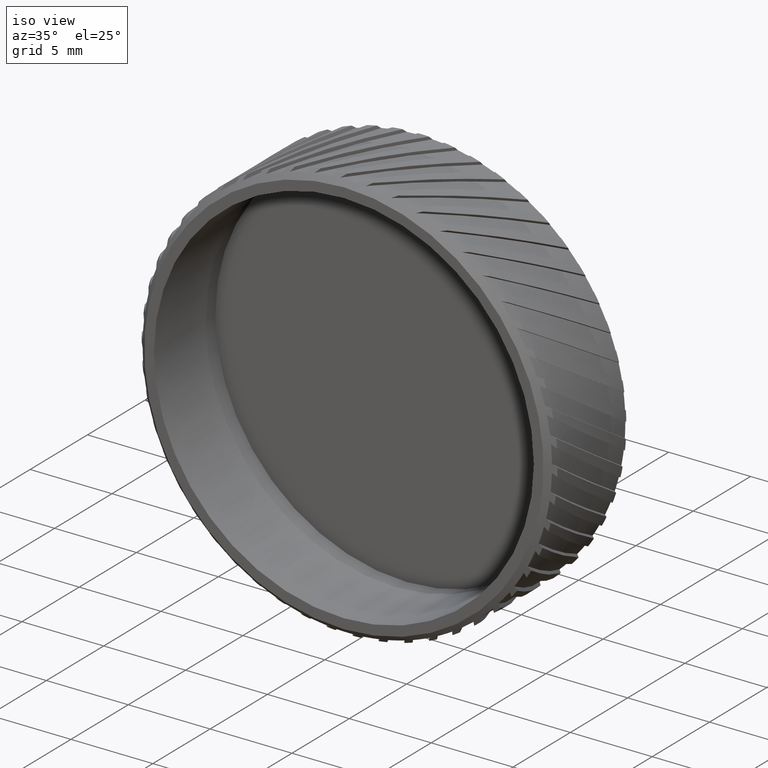
[diagram: clean part render]
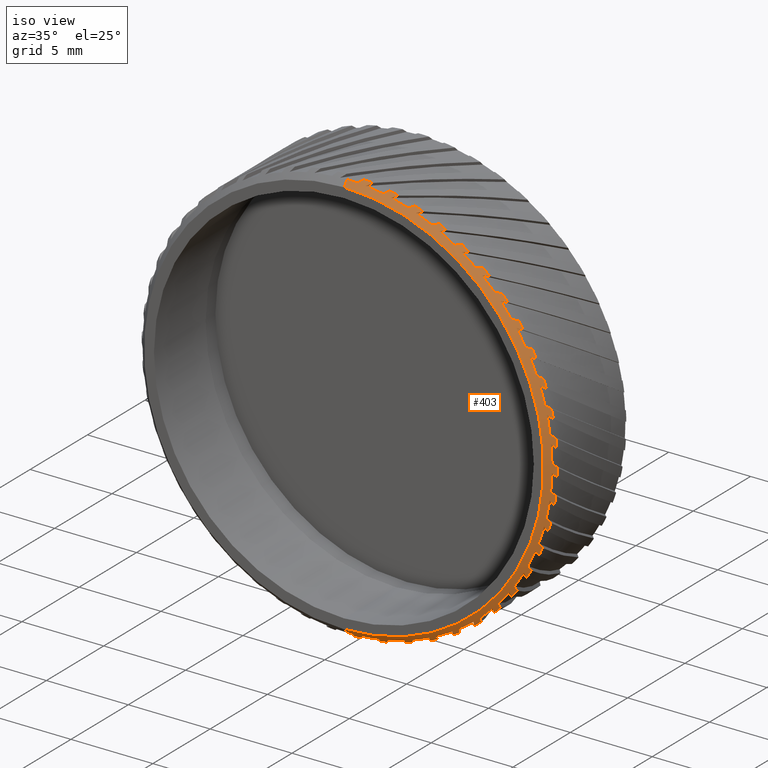
[diagram: same view with one face highlighted and labeled with its STEP entity id]
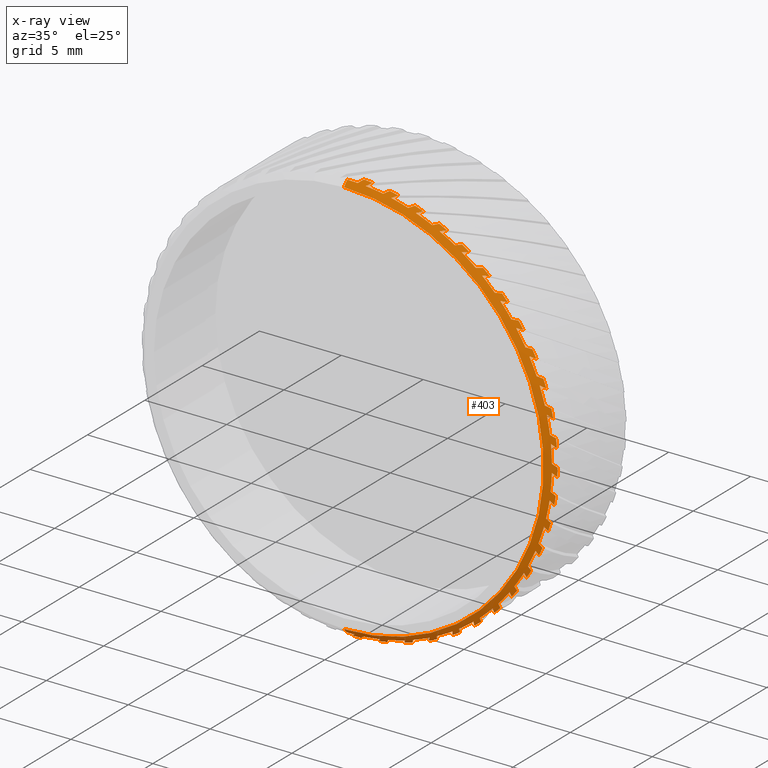
[diagram: x-ray of the same camera — body ghosted, the highlighted face saturated]
A machine part, iso view. The second image highlights one B-rep face of the part: STEP entity #403.
The next image is the same camera in x-ray: the body ghosted, the highlighted face saturated — about 0% of this face is hidden behind the body in this view.
In plain terms, the highlighted conical surface has half-angle 45 deg.
Its self-contained STEP definition (entity closure, byte-faithful):
#2 = CARTESIAN_POINT ( 'NONE',  ( 6.404945631355030100, -13.03088448223190600, -10.73436870334656800 ) ) ;
#23 = AXIS2_PLACEMENT_3D ( 'NONE', #4518, #5065, #7443 ) ;
#24 = ORIENTED_EDGE ( 'NONE', *, *, #4246, .F. ) ;
#33 = VERTEX_POINT ( 'NONE', #4659 ) ;
#38 = DIRECTION ( 'NONE',  ( 0.5877852522924743600, 0.0000000000000000000, 0.8090169943749466700 ) ) ;
#39 = EDGE_CURVE ( 'NONE', #5373, #1752, #80, .T. ) ;
#45 = B_SPLINE_CURVE_WITH_KNOTS ( 'NONE', 3,
 ( #1492, #1443, #7333, #327 ),
 .UNSPECIFIED., .F., .F.,
 ( 4, 4 ),
 ( 0.0003001109171765211700, 0.0006666403055944537400 ),
 .UNSPECIFIED. ) ;
#47 = B_SPLINE_CURVE_WITH_KNOTS ( 'NONE', 3,
 ( #6223, #2685, #338, #2580 ),
 .UNSPECIFIED., .F., .F.,
 ( 4, 4 ),
 ( 3.824870961904004900E-007, 0.0003853162903602958300 ),
 .UNSPECIFIED. ) ;
#66 = CARTESIAN_POINT ( 'NONE',  ( 2.456212362627999000, -12.83088448223190900, 12.46021752738183800 ) ) ;
#76 = EDGE_CURVE ( 'NONE', #363, #6769, #2625, .T. ) ;
#80 = CIRCLE ( 'NONE', #5790, 12.50000000000000900 ) ;
#97 = DIRECTION ( 'NONE',  ( 0.6845471059286899500, 0.0000000000000000000, 0.7289686274214104400 ) ) ;
#114 = CARTESIAN_POINT ( 'NONE',  ( 7.848061627961812700, -13.03088448223190600, 9.729230631643673600 ) ) ;
#123 = CARTESIAN_POINT ( 'NONE',  ( 0.0000000000000000000, -12.83088448223190900, 0.0000000000000000000 ) ) ;
#127 = DIRECTION ( 'NONE',  ( -0.0000000000000000000, 1.000000000000000000, -0.0000000000000000000 ) ) ;
#151 = DIRECTION ( 'NONE',  ( 0.0000000000000000000, 0.0000000000000000000, -1.000000000000000000 ) ) ;
#152 = DIRECTION ( 'NONE',  ( 0.4817536741017102200, 0.0000000000000000000, -0.8763066800438664700 ) ) ;
#165 = DIRECTION ( 'NONE',  ( -0.3681245526846853600, 0.0000000000000000000, -0.9297764858882485700 ) ) ;
#166 = EDGE_CURVE ( 'NONE', #2812, #4781, #4530, .T. ) ;
#176 = CARTESIAN_POINT ( 'NONE',  ( 0.0000000000000000000, -13.03088448223190600, 0.0000000000000000000 ) ) ;
#187 = ORIENTED_EDGE ( 'NONE', *, *, #6145, .F. ) ;
#188 = VERTEX_POINT ( 'NONE', #7184 ) ;
#195 = VERTEX_POINT ( 'NONE', #5464 ) ;
#211 = CARTESIAN_POINT ( 'NONE',  ( 10.51905476577063000, -12.89797574302597600, 6.996236946598626700 ) ) ;
#213 = EDGE_CURVE ( 'NONE', #5095, #1021, #3034, .T. ) ;
#217 = CARTESIAN_POINT ( 'NONE',  ( 9.344066389665005800, -13.03088448223190600, 8.302916554171368100 ) ) ;
#233 = VERTEX_POINT ( 'NONE', #1977 ) ;
#237 = EDGE_CURVE ( 'NONE', #1750, #2250, #1435, .T. ) ;
#243 = CARTESIAN_POINT ( 'NONE',  ( 10.21173289956295000, -12.96455323901442300, -7.323886926002606900 ) ) ;
#247 = CIRCLE ( 'NONE', #5237, 12.70000000000000600 ) ;
#250 = CARTESIAN_POINT ( 'NONE',  ( 8.858502723914952500, -12.96465053294377200, -8.913184342659706200 ) ) ;
#257 = B_SPLINE_CURVE_WITH_KNOTS ( 'NONE', 3,
 ( #1820, #5988, #4305, #3024 ),
 .UNSPECIFIED., .F., .F.,
 ( 4, 4 ),
 ( 0.0003001109171765213300, 0.0006666403055944549300 ),
 .UNSPECIFIED. ) ;
#265 = CARTESIAN_POINT ( 'NONE',  ( 2.303183504501602500, -12.83088448223190900, -12.48940934330330200 ) ) ;
#317 = ORIENTED_EDGE ( 'NONE', *, *, #6975, .F. ) ;
#326 = CARTESIAN_POINT ( 'NONE',  ( 12.13440348655043800, -12.83088448223190900, -3.747832977280702900 ) ) ;
#327 = CARTESIAN_POINT ( 'NONE',  ( 12.28140328403375400, -12.83088448223190900, -3.233749120591301800 ) ) ;
#338 = CARTESIAN_POINT ( 'NONE',  ( 1.927640940784386000, -12.96465053294377200, -12.41781486571830800 ) ) ;
#353 = VERTEX_POINT ( 'NONE', #7381 ) ;
#356 = VERTEX_POINT ( 'NONE', #911 ) ;
#357 = CARTESIAN_POINT ( 'NONE',  ( 7.699813861849092300, -13.03088448223190600, -9.846972453138919300 ) ) ;
#363 = VERTEX_POINT ( 'NONE', #5649 ) ;
#370 = ORIENTED_EDGE ( 'NONE', *, *, #39, .F. ) ;
#387 = CARTESIAN_POINT ( 'NONE',  ( 10.80918014084870300, -12.89797574302597600, -6.539072507696750400 ) ) ;
#392 = CARTESIAN_POINT ( 'NONE',  ( 12.13440348655043800, -12.83088448223190900, -3.747832977280702900 ) ) ;
#403 = ADVANCED_FACE ( 'NONE', ( #1721 ), #2287, .T. ) ;
#410 = CARTESIAN_POINT ( 'NONE',  ( 6.280031236066717400, -12.83088448223190900, -11.03862345014207200 ) ) ;
#417 = VERTEX_POINT ( 'NONE', #3578 ) ;
#439 = ORIENTED_EDGE ( 'NONE', *, *, #7420, .F. ) ;
#443 = ORIENTED_EDGE ( 'NONE', *, *, #3214, .F. ) ;
#455 = B_SPLINE_CURVE_WITH_KNOTS ( 'NONE', 3,
 ( #3822, #6699, #2008, #3793 ),
 .UNSPECIFIED., .F., .F.,
 ( 4, 4 ),
 ( 0.0003001109171765209000, 0.0006666403055944538500 ),
 .UNSPECIFIED. ) ;
#458 = VERTEX_POINT ( 'NONE', #4900 ) ;
#468 = ORIENTED_EDGE ( 'NONE', *, *, #5367, .F. ) ;
#484 = CARTESIAN_POINT ( 'NONE',  ( 8.557718386036013300, -12.83088448223190900, 9.383786870198052900 ) ) ;
#487 = CARTESIAN_POINT ( 'NONE',  ( 6.566781382766169600, -13.03088448223190600, 10.63613568317722400 ) ) ;
#490 = CARTESIAN_POINT ( 'NONE',  ( 6.739104092970663400, -12.83088448223190900, -10.76450073269104900 ) ) ;
#505 = DIRECTION ( 'NONE',  ( -0.0000000000000000000, 1.000000000000000000, -0.0000000000000000000 ) ) ;
#511 = EDGE_CURVE ( 'NONE', #7421, #4032, #6948, .T. ) ;
#513 = CARTESIAN_POINT ( 'NONE',  ( 1.127793752683210900, -13.03088448223190600, 12.44901928873953300 ) ) ;
#518 = AXIS2_PLACEMENT_3D ( 'NONE', #4865, #7219, #3670 ) ;
#522 = AXIS2_PLACEMENT_3D ( 'NONE', #5418, #4276, #2399 ) ;
#525 = CIRCLE ( 'NONE', #3260, 12.70000000000000600 ) ;
#547 = DIRECTION ( 'NONE',  ( 0.0000000000000000000, 1.000000000000000000, 0.0000000000000000000 ) ) ;
#579 = ORIENTED_EDGE ( 'NONE', *, *, #1300, .F. ) ;
#585 = CARTESIAN_POINT ( 'NONE',  ( 8.339366221096264900, -12.96465053294377300, 9.400685967857946000 ) ) ;
#589 = CARTESIAN_POINT ( 'NONE',  ( 10.22853753869318700, -12.83088448223190900, -7.527749983862674900 ) ) ;
#601 = CIRCLE ( 'NONE', #1850, 12.50000000000000700 ) ;
#607 = DIRECTION ( 'NONE',  ( 0.0000000000000000000, 1.000000000000000000, 0.0000000000000000000 ) ) ;
#618 = ORIENTED_EDGE ( 'NONE', *, *, #2649, .F. ) ;
#620 = CIRCLE ( 'NONE', #4337, 12.50000000000000700 ) ;
#621 = DIRECTION ( 'NONE',  ( 0.0000000000000000000, 1.000000000000000000, 0.0000000000000000000 ) ) ;
#623 = ORIENTED_EDGE ( 'NONE', *, *, #6342, .F. ) ;
#628 = CARTESIAN_POINT ( 'NONE',  ( 9.204405218143358900, -12.83088448223190900, -8.750367111168275300 ) ) ;
#631 = CARTESIAN_POINT ( 'NONE',  ( 0.7120421440886615100, -12.96455323901442500, 12.54638611321721700 ) ) ;
#634 = DIRECTION ( 'NONE',  ( -0.0000000000000000000, 1.000000000000000000, -0.0000000000000000000 ) ) ;
#638 = CARTESIAN_POINT ( 'NONE',  ( 12.56633818232617200, -12.96455323901442500, 0.07715701069637118100 ) ) ;
#639 = CARTESIAN_POINT ( 'NONE',  ( 11.65548236559749100, -12.96455323901442500, 4.697716396520137400 ) ) ;
#659 = CARTESIAN_POINT ( 'NONE',  ( 2.190216227001551300, -13.03088448223190600, 12.30662231804402400 ) ) ;
#660 = CARTESIAN_POINT ( 'NONE',  ( 12.55906511803772000, -12.96465053294377300, -0.4333693537052519800 ) ) ;
#674 = ORIENTED_EDGE ( 'NONE', *, *, #3773, .F. ) ;
#680 = CARTESIAN_POINT ( 'NONE',  ( 10.32010760225160500, -12.83088448223190900, 7.401714603924467900 ) ) ;
#683 = CARTESIAN_POINT ( 'NONE',  ( 9.217248350505634800, -13.03088448223190600, -8.443478717039635500 ) ) ;
#684 = CARTESIAN_POINT ( 'NONE',  ( 12.49526874853405400, -13.03088448223190600, -0.3438879205619097000 ) ) ;
#688 = B_SPLINE_CURVE_WITH_KNOTS ( 'NONE', 3,
 ( #5868, #3597, #1094, #1695 ),
 .UNSPECIFIED., .F., .F.,
 ( 4, 4 ),
 ( 0.0003001109171765209000, 0.0006666403055944536300 ),
 .UNSPECIFIED. ) ;
#695 = DIRECTION ( 'NONE',  ( 0.0000000000000000000, 1.000000000000000000, 0.0000000000000000000 ) ) ;
#709 = CARTESIAN_POINT ( 'NONE',  ( 11.74596151008202200, -12.89788052316025700, -4.650927602626100400 ) ) ;
#718 = EDGE_CURVE ( 'NONE', #6289, #233, #1619, .T. ) ;
#719 = CARTESIAN_POINT ( 'NONE',  ( 11.02747931365985500, -13.03088448223190600, -5.885974854414870400 ) ) ;
#725 = ORIENTED_EDGE ( 'NONE', *, *, #4822, .F. ) ;
#731 = VERTEX_POINT ( 'NONE', #5387 ) ;
#736 = VERTEX_POINT ( 'NONE', #3287 ) ;
#740 = CARTESIAN_POINT ( 'NONE',  ( -0.0000000000000000000, -13.03088448223190600, 0.0000000000000000000 ) ) ;
#742 = B_SPLINE_CURVE_WITH_KNOTS ( 'NONE', 3,
 ( #4345, #5619, #250, #7282 ),
 .UNSPECIFIED., .F., .F.,
 ( 4, 4 ),
 ( 3.824870961900842300E-007, 0.0003853162903602952900 ),
 .UNSPECIFIED. ) ;
#743 = VERTEX_POINT ( 'NONE', #3931 ) ;
#760 = CARTESIAN_POINT ( 'NONE',  ( 0.0000000000000000000, -13.03088448223190600, 0.0000000000000000000 ) ) ;
#766 = CARTESIAN_POINT ( 'NONE',  ( 0.0000000000000000000, -12.83088448223190900, 0.0000000000000000000 ) ) ;
#783 = CARTESIAN_POINT ( 'NONE',  ( 3.337538486344798500, -12.83088448223190900, -12.25360505533646600 ) ) ;
#790 = DIRECTION ( 'NONE',  ( -0.0000000000000000000, 1.000000000000000000, -0.0000000000000000000 ) ) ;
#794 = CARTESIAN_POINT ( 'NONE',  ( 4.847004942910775300, -12.83088448223190900, -11.73867722886180300 ) ) ;
#795 = B_SPLINE_CURVE_WITH_KNOTS ( 'NONE', 3,
 ( #6399, #3972, #5783, #2717 ),
 .UNSPECIFIED., .F., .F.,
 ( 4, 4 ),
 ( 0.0003001109171765211200, 0.0006666403055944538500 ),
 .UNSPECIFIED. ) ;
#810 = VERTEX_POINT ( 'NONE', #2271 ) ;
#820 = CARTESIAN_POINT ( 'NONE',  ( 10.41522522885758100, -12.96465053294377200, 7.031430086974578900 ) ) ;
#840 = VERTEX_POINT ( 'NONE', #1665 ) ;
#844 = VERTEX_POINT ( 'NONE', #5273 ) ;
#850 = CARTESIAN_POINT ( 'NONE',  ( 11.83661401425291300, -12.83088448223190900, 4.602669733707998900 ) ) ;
#851 = VERTEX_POINT ( 'NONE', #1834 ) ;
#866 = DIRECTION ( 'NONE',  ( -0.0000000000000000000, 1.000000000000000000, -0.0000000000000000000 ) ) ;
#876 = DIRECTION ( 'NONE',  ( -0.4817536741017223700, 0.0000000000000000000, -0.8763066800438595900 ) ) ;
#877 = CARTESIAN_POINT ( 'NONE',  ( 5.009067582125290100, -13.03088448223190600, -11.45247754670148400 ) ) ;
#896 = CARTESIAN_POINT ( 'NONE',  ( 12.41986282485478600, -13.03088448223190600, -1.413155126583884200 ) ) ;
#904 = CARTESIAN_POINT ( 'NONE',  ( 8.086319104065300000, -13.03088448223190600, -9.532126905745050400 ) ) ;
#911 = CARTESIAN_POINT ( 'NONE',  ( 10.82113072718064300, -12.83088448223190900, -6.647791346399724700 ) ) ;
#920 = EDGE_CURVE ( 'NONE', #4669, #5782, #4333, .T. ) ;
#925 = CARTESIAN_POINT ( 'NONE',  ( 12.23642913123398100, -12.89788052316025900, 3.141423479489212000 ) ) ;
#926 = CARTESIAN_POINT ( 'NONE',  ( 12.51434872079862400, -12.96465053294377200, 1.144116134878196700 ) ) ;
#928 = VERTEX_POINT ( 'NONE', #2557 ) ;
#947 = CARTESIAN_POINT ( 'NONE',  ( 11.41116767226985800, -12.83088448223190900, 5.574518127636097600 ) ) ;
#967 = CIRCLE ( 'NONE', #2650, 12.19999999999999600 ) ;
#973 = CARTESIAN_POINT ( 'NONE',  ( 11.83665733097082100, -12.96465053294377200, 4.220363593935655200 ) ) ;
#1014 = B_SPLINE_CURVE_WITH_KNOTS ( 'NONE', 3,
 ( #5928, #4068, #6030, #680 ),
 .UNSPECIFIED., .F., .F.,
 ( 4, 4 ),
 ( 0.0003001109171765200900, 0.0006666403055944542800 ),
 .UNSPECIFIED. ) ;
#1021 = VERTEX_POINT ( 'NONE', #7398 ) ;
#1026 = B_SPLINE_CURVE_WITH_KNOTS ( 'NONE', 3,
 ( #783, #5566, #5670, #2696 ),
 .UNSPECIFIED., .F., .F.,
 ( 4, 4 ),
 ( 3.824870961892453000E-007, 0.0003853162903602951300 ),
 .UNSPECIFIED. ) ;
#1037 = EDGE_CURVE ( 'NONE', #1021, #6289, #1569, .T. ) ;
#1062 = CARTESIAN_POINT ( 'NONE',  ( 6.985653980501434800, -13.03088448223190600, 10.36583997873325400 ) ) ;
#1069 = DIRECTION ( 'NONE',  ( 0.0000000000000000000, 0.0000000000000000000, 1.000000000000000000 ) ) ;
#1072 = DIRECTION ( 'NONE',  ( -0.1253332335643113100, 0.0000000000000000000, -0.9921147013144769900 ) ) ;
#1074 = ORIENTED_EDGE ( 'NONE', *, *, #2963, .F. ) ;
#1088 = CARTESIAN_POINT ( 'NONE',  ( 10.02106160832788200, -13.03088448223190600, 7.471835399826279200 ) ) ;
#1090 = VERTEX_POINT ( 'NONE', #1565 ) ;
#1091 = ORIENTED_EDGE ( 'NONE', *, *, #6241, .F. ) ;
#1094 = CARTESIAN_POINT ( 'NONE',  ( 8.052463074276767300, -12.89788052316025900, -9.734299039920998100 ) ) ;
#1102 = CARTESIAN_POINT ( 'NONE',  ( 12.38110738465840100, -13.03088448223190600, 1.719936024844366300 ) ) ;
#1108 = DIRECTION ( 'NONE',  ( 0.9510565162951523100, 0.0000000000000000000, -0.3090169943749515000 ) ) ;
#1132 = AXIS2_PLACEMENT_3D ( 'NONE', #5288, #1156, #5832 ) ;
#1136 = DIRECTION ( 'NONE',  ( 0.0000000000000000000, 0.0000000000000000000, 1.000000000000000000 ) ) ;
#1137 = CIRCLE ( 'NONE', #4904, 12.50000000000000700 ) ;
#1146 = EDGE_CURVE ( 'NONE', #188, #5373, #5525, .T. ) ;
#1156 = DIRECTION ( 'NONE',  ( 0.0000000000000000000, 1.000000000000000000, 0.0000000000000000000 ) ) ;
#1166 = CARTESIAN_POINT ( 'NONE',  ( 5.181939072359243800, -13.03088448223190600, 11.37530252126758900 ) ) ;
#1169 = ORIENTED_EDGE ( 'NONE', *, *, #4713, .F. ) ;
#1178 = CARTESIAN_POINT ( 'NONE',  ( 0.0000000000000000000, -13.03088448223190600, 12.50000000000000500 ) ) ;
#1180 = CARTESIAN_POINT ( 'NONE',  ( 0.7935932814051294100, -12.89788052316025900, 12.60828890313457200 ) ) ;
#1191 = CARTESIAN_POINT ( 'NONE',  ( 6.321934557422825800, -12.89797574302597700, -10.93759516666696300 ) ) ;
#1198 = CARTESIAN_POINT ( 'NONE',  ( 0.0000000000000000000, -12.83088448223190900, 0.0000000000000000000 ) ) ;
#1208 = ORIENTED_EDGE ( 'NONE', *, *, #5597, .F. ) ;
#1210 = CARTESIAN_POINT ( 'NONE',  ( 1.530808498934192100E-015, -13.03088448223190600, -12.50000000000000500 ) ) ;
#1233 = CIRCLE ( 'NONE', #5589, 12.50000000000000500 ) ;
#1243 = EDGE_CURVE ( 'NONE', #5491, #7617, #6122, .T. ) ;
#1245 = CARTESIAN_POINT ( 'NONE',  ( 11.49121348031075800, -13.03088448223190600, -4.919554121048415500 ) ) ;
#1248 = EDGE_CURVE ( 'NONE', #928, #4252, #2560, .T. ) ;
#1259 = DIRECTION ( 'NONE',  ( -0.0000000000000000000, 1.000000000000000000, -0.0000000000000000000 ) ) ;
#1260 = B_SPLINE_CURVE_WITH_KNOTS ( 'NONE', 3,
 ( #4868, #4895, #6569, #265 ),
 .UNSPECIFIED., .F., .F.,
 ( 4, 4 ),
 ( 0.0003001109171765204100, 0.0006666403055944535200 ),
 .UNSPECIFIED. ) ;
#1268 = CARTESIAN_POINT ( 'NONE',  ( 10.32010760225160500, -12.83088448223190900, 7.401714603924467900 ) ) ;
#1274 = CARTESIAN_POINT ( 'NONE',  ( 11.51758953201083100, -12.96465053294377300, -5.026236863495119800 ) ) ;
#1285 = ORIENTED_EDGE ( 'NONE', *, *, #4035, .F. ) ;
#1294 = AXIS2_PLACEMENT_3D ( 'NONE', #4426, #3225, #7302 ) ;
#1297 = CARTESIAN_POINT ( 'NONE',  ( 11.56440143295615100, -13.03088448223190600, 4.744957270349423200 ) ) ;
#1300 = EDGE_CURVE ( 'NONE', #4030, #4090, #2002, .T. ) ;
#1301 = CARTESIAN_POINT ( 'NONE',  ( 12.53357919063947000, -12.89788052316025900, -1.583708316946959200 ) ) ;
#1313 = ORIENTED_EDGE ( 'NONE', *, *, #4064, .F. ) ;
#1318 = DIRECTION ( 'NONE',  ( 0.9822872507286879400, 0.0000000000000000000, -0.1873813145857285400 ) ) ;
#1322 = LINE ( 'NONE', #4701, #6831 ) ;
#1349 = VERTEX_POINT ( 'NONE', #1088 ) ;
#1354 = VERTEX_POINT ( 'NONE', #2259 ) ;
#1359 = DIRECTION ( 'NONE',  ( -0.0000000000000000000, 1.000000000000000000, -0.0000000000000000000 ) ) ;
#1362 = VERTEX_POINT ( 'NONE', #4127 ) ;
#1369 = VERTEX_POINT ( 'NONE', #4149 ) ;
#1374 = CARTESIAN_POINT ( 'NONE',  ( 11.07042529971577100, -12.89788052316025900, -6.086412986695094700 ) ) ;
#1398 = DIRECTION ( 'NONE',  ( 0.0000000000000000000, 1.000000000000000000, 0.0000000000000000000 ) ) ;
#1401 = EDGE_CURVE ( 'NONE', #2531, #2812, #7032, .T. ) ;
#1402 = ORIENTED_EDGE ( 'NONE', *, *, #2552, .F. ) ;
#1411 = CIRCLE ( 'NONE', #7533, 12.50000000000000700 ) ;
#1435 = CIRCLE ( 'NONE', #4597, 12.50000000000000700 ) ;
#1442 = ORIENTED_EDGE ( 'NONE', *, *, #7565, .F. ) ;
#1443 = CARTESIAN_POINT ( 'NONE',  ( 12.19073172873295800, -12.96455323901442300, -3.050388243314579000 ) ) ;
#1455 = ORIENTED_EDGE ( 'NONE', *, *, #1986, .F. ) ;
#1473 = AXIS2_PLACEMENT_3D ( 'NONE', #2515, #695, #7296 ) ;
#1492 = CARTESIAN_POINT ( 'NONE',  ( 12.14481319530485800, -13.03088448223190600, -2.958633544585940200 ) ) ;
#1498 = EDGE_CURVE ( 'NONE', #233, #3736, #257, .T. ) ;
#1525 = CIRCLE ( 'NONE', #4906, 12.50000000000000500 ) ;
#1529 = VERTEX_POINT ( 'NONE', #1210 ) ;
#1538 = ORIENTED_EDGE ( 'NONE', *, *, #718, .F. ) ;
#1563 = DIRECTION ( 'NONE',  ( 0.0000000000000000000, 0.0000000000000000000, 1.000000000000000000 ) ) ;
#1565 = CARTESIAN_POINT ( 'NONE',  ( 12.49904379839032100, -13.03088448223190600, 0.1546095919423527700 ) ) ;
#1567 = VERTEX_POINT ( 'NONE', #2550 ) ;
#1569 = B_SPLINE_CURVE_WITH_KNOTS ( 'NONE', 3,
 ( #2630, #6924, #5147, #2806 ),
 .UNSPECIFIED., .F., .F.,
 ( 4, 4 ),
 ( 3.824870961896644200E-007, 0.0003853162903602952900 ),
 .UNSPECIFIED. ) ;
#1580 = ORIENTED_EDGE ( 'NONE', *, *, #5968, .F. ) ;
#1585 = CARTESIAN_POINT ( 'NONE',  ( 7.614017685120915100, -12.83088448223190900, -10.16448398545966600 ) ) ;
#1619 = CIRCLE ( 'NONE', #2105, 12.50000000000000700 ) ;
#1636 = EDGE_CURVE ( 'NONE', #3048, #2159, #5035, .T. ) ;
#1646 = EDGE_CURVE ( 'NONE', #6041, #1567, #6213, .T. ) ;
#1647 = CARTESIAN_POINT ( 'NONE',  ( 8.827926526887138100, -12.83088448223190900, -9.130044536358108000 ) ) ;
#1657 = CARTESIAN_POINT ( 'NONE',  ( 3.903556340176143700, -12.89788052316025900, -12.01503172115115000 ) ) ;
#1665 = CARTESIAN_POINT ( 'NONE',  ( 12.32014625807947000, -12.83088448223190900, 3.082855199248017500 ) ) ;
#1674 = CARTESIAN_POINT ( 'NONE',  ( 5.379285084994998900, -12.89788052316025900, 11.43074937768946600 ) ) ;
#1678 = DIRECTION ( 'NONE',  ( 0.8443279255020164100, 0.0000000000000000000, 0.5358267949789945500 ) ) ;
#1682 = DIRECTION ( 'NONE',  ( -0.0000000000000000000, 1.000000000000000000, -0.0000000000000000000 ) ) ;
#1695 = CARTESIAN_POINT ( 'NONE',  ( 8.035113928858256900, -12.83088448223190900, -9.834985721914806700 ) ) ;
#1696 = CIRCLE ( 'NONE', #2856, 12.70000000000000600 ) ;
#1717 = CARTESIAN_POINT ( 'NONE',  ( 1.221104421843552300, -12.96465053294377200, 12.50707118500558000 ) ) ;
#1718 = ORIENTED_EDGE ( 'NONE', *, *, #2852, .F. ) ;
#1721 = FACE_OUTER_BOUND ( 'NONE', #4070, .T. ) ;
#1749 = CARTESIAN_POINT ( 'NONE',  ( 1.407688074419904100, -12.83088448223190900, 12.62174371016683900 ) ) ;
#1750 = VERTEX_POINT ( 'NONE', #5683 ) ;
#1752 = VERTEX_POINT ( 'NONE', #4020 ) ;
#1753 = CARTESIAN_POINT ( 'NONE',  ( 12.47691919001797900, -12.96455323901442300, -1.498431193832175700 ) ) ;
#1754 = DIRECTION ( 'NONE',  ( 0.7705132427757904700, 0.0000000000000000000, 0.6374239897486881900 ) ) ;
#1760 = CARTESIAN_POINT ( 'NONE',  ( 0.1853359189179877300, -12.83088448223190900, -12.69864758929701800 ) ) ;
#1769 = DIRECTION ( 'NONE',  ( 0.0000000000000000000, 1.000000000000000000, 0.0000000000000000000 ) ) ;
#1779 = CARTESIAN_POINT ( 'NONE',  ( 9.905768999050641500, -12.96465053294377200, -7.732636430952254600 ) ) ;
#1786 = CARTESIAN_POINT ( 'NONE',  ( 11.67823260670523000, -13.03088448223190600, -4.457452544187870700 ) ) ;
#1790 = CARTESIAN_POINT ( 'NONE',  ( 0.0000000000000000000, -13.03088448223190600, -0.0000000000000000000 ) ) ;
#1806 = CARTESIAN_POINT ( 'NONE',  ( 7.699813861849092300, -13.03088448223190600, -9.846972453138919300 ) ) ;
#1809 = DIRECTION ( 'NONE',  ( 0.0000000000000000000, 0.0000000000000000000, 1.000000000000000000 ) ) ;
#1819 = B_SPLINE_CURVE_WITH_KNOTS ( 'NONE', 3,
 ( #2367, #631, #1180, #6532 ),
 .UNSPECIFIED., .F., .F.,
 ( 4, 4 ),
 ( 0.0003001109171765205200, 0.0006666403055944539600 ),
 .UNSPECIFIED. ) ;
#1820 = CARTESIAN_POINT ( 'NONE',  ( 3.715374487240861200, -13.03088448223190600, 11.93507404332121900 ) ) ;
#1824 = CARTESIAN_POINT ( 'NONE',  ( 9.906752518698398900, -13.03088448223190600, -7.622745865714208900 ) ) ;
#1825 = CARTESIAN_POINT ( 'NONE',  ( 11.83661401425291300, -12.83088448223190900, 4.602669733707998900 ) ) ;
#1832 = VERTEX_POINT ( 'NONE', #484 ) ;
#1834 = CARTESIAN_POINT ( 'NONE',  ( 12.06791351135536200, -13.03088448223190600, 3.258138039194605100 ) ) ;
#1841 = DIRECTION ( 'NONE',  ( 0.0000000000000000000, 1.000000000000000000, 0.0000000000000000000 ) ) ;
#1846 = VERTEX_POINT ( 'NONE', #2362 ) ;
#1849 = ORIENTED_EDGE ( 'NONE', *, *, #7150, .F. ) ;
#1850 = AXIS2_PLACEMENT_3D ( 'NONE', #4880, #1841, #3043 ) ;
#1851 = ORIENTED_EDGE ( 'NONE', *, *, #3128, .F. ) ;
#1870 = CARTESIAN_POINT ( 'NONE',  ( 0.0000000000000000000, -12.83088448223190900, 0.0000000000000000000 ) ) ;
#1878 = EDGE_CURVE ( 'NONE', #6535, #6044, #3607, .T. ) ;
#1884 = CARTESIAN_POINT ( 'NONE',  ( 0.0000000000000000000, -12.83088448223190900, 0.0000000000000000000 ) ) ;
#1886 = CARTESIAN_POINT ( 'NONE',  ( 12.58985698468123000, -12.83088448223190900, -1.668982056606175700 ) ) ;
#1896 = AXIS2_PLACEMENT_3D ( 'NONE', #5460, #2991, #7157 ) ;
#1900 = DIRECTION ( 'NONE',  ( 0.0000000000000000000, 0.0000000000000000000, 1.000000000000000000 ) ) ;
#1911 = EDGE_CURVE ( 'NONE', #2026, #188, #4435, .T. ) ;
#1927 = CARTESIAN_POINT ( 'NONE',  ( 12.35363923722826100, -13.03088448223190600, -1.907248698102709300 ) ) ;
#1930 = B_SPLINE_CURVE_WITH_KNOTS ( 'NONE', 3,
 ( #4496, #243, #2038, #5690 ),
 .UNSPECIFIED., .F., .F.,
 ( 4, 4 ),
 ( 0.0003001109171765216100, 0.0006666403055944533100 ),
 .UNSPECIFIED. ) ;
#1943 = EDGE_CURVE ( 'NONE', #7426, #1362, #1233, .T. ) ;
#1953 = CARTESIAN_POINT ( 'NONE',  ( 3.998523748134993600, -12.83088448223190900, 12.05411995276306500 ) ) ;
#1955 = CARTESIAN_POINT ( 'NONE',  ( 12.50844811658987200, -12.83088448223190900, -2.197436168488053000 ) ) ;
#1958 = AXIS2_PLACEMENT_3D ( 'NONE', #6149, #2556, #6827 ) ;
#1963 = VERTEX_POINT ( 'NONE', #2440 ) ;
#1967 = EDGE_CURVE ( 'NONE', #353, #5925, #3871, .T. ) ;
#1969 = ORIENTED_EDGE ( 'NONE', *, *, #5131, .F. ) ;
#1974 = ORIENTED_EDGE ( 'NONE', *, *, #2757, .F. ) ;
#1975 = ORIENTED_EDGE ( 'NONE', *, *, #6458, .F. ) ;
#1977 = CARTESIAN_POINT ( 'NONE',  ( 3.715374487240861200, -13.03088448223190600, 11.93507404332121900 ) ) ;
#1980 = DIRECTION ( 'NONE',  ( 0.0000000000000000000, 1.000000000000000000, 0.0000000000000000000 ) ) ;
#1986 = EDGE_CURVE ( 'NONE', #5650, #7098, #2652, .T. ) ;
#1995 = CARTESIAN_POINT ( 'NONE',  ( 0.0000000000000000000, -12.83088448223190900, 0.0000000000000000000 ) ) ;
#1997 = CARTESIAN_POINT ( 'NONE',  ( 2.003583164154628400, -13.03088448223190600, -12.33838135673866500 ) ) ;
#1999 = AXIS2_PLACEMENT_3D ( 'NONE', #3076, #607, #6645 ) ;
#2002 = CIRCLE ( 'NONE', #2092, 12.70000000000000600 ) ;
#2006 = ORIENTED_EDGE ( 'NONE', *, *, #1243, .F. ) ;
#2008 = CARTESIAN_POINT ( 'NONE',  ( 9.209472284430336900, -12.89788052316025900, 8.647795071780272700 ) ) ;
#2026 = VERTEX_POINT ( 'NONE', #3705 ) ;
#2038 = CARTESIAN_POINT ( 'NONE',  ( 10.22030186922147800, -12.89788052316025900, -7.425912002117025100 ) ) ;
#2046 = CARTESIAN_POINT ( 'NONE',  ( 4.901240045511463500, -12.89797574302597600, -11.64369746234022600 ) ) ;
#2048 = CARTESIAN_POINT ( 'NONE',  ( 6.739104092970663400, -12.83088448223190900, -10.76450073269104900 ) ) ;
#2052 = EDGE_CURVE ( 'NONE', #1567, #6216, #4430, .T. ) ;
#2076 = CARTESIAN_POINT ( 'NONE',  ( 12.01718545544500600, -13.03088448223190600, -3.440531024339286600 ) ) ;
#2081 = CARTESIAN_POINT ( 'NONE',  ( 12.60938243571748000, -12.83088448223190900, 1.514422196687463800 ) ) ;
#2091 = CARTESIAN_POINT ( 'NONE',  ( -0.0000000000000000000, -13.03088448223190600, 0.0000000000000000000 ) ) ;
#2092 = AXIS2_PLACEMENT_3D ( 'NONE', #4782, #2975, #1136 ) ;
#2105 = AXIS2_PLACEMENT_3D ( 'NONE', #6031, #6619, #97 ) ;
#2131 = EDGE_CURVE ( 'NONE', #7596, #1963, #6876, .T. ) ;
#2134 = CARTESIAN_POINT ( 'NONE',  ( 7.614017685120915100, -12.83088448223190900, -10.16448398545966600 ) ) ;
#2146 = ORIENTED_EDGE ( 'NONE', *, *, #6647, .F. ) ;
#2154 = CARTESIAN_POINT ( 'NONE',  ( 0.7929020565962787700, -12.89788052316025900, -12.60833239131341800 ) ) ;
#2159 = VERTEX_POINT ( 'NONE', #1806 ) ;
#2164 = DIRECTION ( 'NONE',  ( -0.0000000000000000000, 1.000000000000000000, -0.0000000000000000000 ) ) ;
#2179 = CIRCLE ( 'NONE', #518, 12.50000000000000700 ) ;
#2207 = VERTEX_POINT ( 'NONE', #3654 ) ;
#2210 = ORIENTED_EDGE ( 'NONE', *, *, #3268, .F. ) ;
#2214 = VERTEX_POINT ( 'NONE', #5429 ) ;
#2235 = DIRECTION ( 'NONE',  ( 0.0000000000000000000, 0.0000000000000000000, 1.000000000000000000 ) ) ;
#2237 = EDGE_CURVE ( 'NONE', #4819, #195, #4384, .T. ) ;
#2250 = VERTEX_POINT ( 'NONE', #4902 ) ;
#2259 = CARTESIAN_POINT ( 'NONE',  ( 8.035113928858256900, -12.83088448223190900, -9.834985721914806700 ) ) ;
#2264 = CARTESIAN_POINT ( 'NONE',  ( 5.631385769206695500, -13.03088448223190600, 11.15963683631221300 ) ) ;
#2271 = CARTESIAN_POINT ( 'NONE',  ( 0.4413750800743991800, -13.03088448223190600, -12.49220509112340200 ) ) ;
#2272 = CIRCLE ( 'NONE', #2640, 12.50000000000000500 ) ;
#2275 = B_SPLINE_CURVE_WITH_KNOTS ( 'NONE', 3,
 ( #1786, #5954, #709, #5414 ),
 .UNSPECIFIED., .F., .F.,
 ( 4, 4 ),
 ( 0.0003001109171765207400, 0.0006666403055944537400 ),
 .UNSPECIFIED. ) ;
#2281 = CARTESIAN_POINT ( 'NONE',  ( 0.2707268260906952600, -12.89797574302597600, -12.63030290863478600 ) ) ;
#2287 = CONICAL_SURFACE ( 'NONE', #2952, 12.70000000000000600, 0.7853981633974517200 ) ;
#2309 = CARTESIAN_POINT ( 'NONE',  ( 12.66195237037335500, -12.83088448223190900, 0.9823248802696347100 ) ) ;
#2349 = EDGE_CURVE ( 'NONE', #5782, #3347, #4799, .T. ) ;
#2362 = CARTESIAN_POINT ( 'NONE',  ( 10.87851183572066400, -13.03088448223190600, 6.156945690850748500 ) ) ;
#2367 = CARTESIAN_POINT ( 'NONE',  ( 0.6305169484906725200, -13.03088448223190600, 12.48408780719144700 ) ) ;
#2392 = CARTESIAN_POINT ( 'NONE',  ( 12.68522704764596700, -12.83088448223190900, -0.6123844786336124500 ) ) ;
#2399 = DIRECTION ( 'NONE',  ( 0.3681245526846719200, 0.0000000000000000000, -0.9297764858882537900 ) ) ;
#2412 = CARTESIAN_POINT ( 'NONE',  ( 12.41986282485478600, -13.03088448223190600, -1.413155126583884200 ) ) ;
#2423 = VERTEX_POINT ( 'NONE', #6345 ) ;
#2440 = CARTESIAN_POINT ( 'NONE',  ( 5.009067582125290100, -13.03088448223190600, -11.45247754670148400 ) ) ;
#2447 = AXIS2_PLACEMENT_3D ( 'NONE', #6665, #866, #6820 ) ;
#2466 = EDGE_CURVE ( 'NONE', #7617, #851, #4146, .T. ) ;
#2481 = ORIENTED_EDGE ( 'NONE', *, *, #4433, .F. ) ;
#2483 = VERTEX_POINT ( 'NONE', #6560 ) ;
#2488 = DIRECTION ( 'NONE',  ( -0.0000000000000000000, 1.000000000000000000, -0.0000000000000000000 ) ) ;
#2503 = DIRECTION ( 'NONE',  ( 0.0000000000000000000, 0.0000000000000000000, 1.000000000000000000 ) ) ;
#2504 = CARTESIAN_POINT ( 'NONE',  ( 1.524685264938455000E-015, -13.33088448223191600, -12.19999999999999600 ) ) ;
#2507 = ORIENTED_EDGE ( 'NONE', *, *, #6927, .F. ) ;
#2510 = VERTEX_POINT ( 'NONE', #3487 ) ;
#2511 = CARTESIAN_POINT ( 'NONE',  ( 12.50844811658987200, -12.83088448223190900, -2.197436168488053000 ) ) ;
#2515 = CARTESIAN_POINT ( 'NONE',  ( 0.0000000000000000000, -13.03088448223190600, 0.0000000000000000000 ) ) ;
#2517 = EDGE_CURVE ( 'NONE', #1090, #5883, #3129, .T. ) ;
#2525 = CARTESIAN_POINT ( 'NONE',  ( 0.0000000000000000000, -13.03088448223190600, -0.0000000000000000000 ) ) ;
#2527 = CARTESIAN_POINT ( 'NONE',  ( 10.62251482432397200, -12.83088448223190900, 6.960759930281867000 ) ) ;
#2531 = VERTEX_POINT ( 'NONE', #1824 ) ;
#2544 = ORIENTED_EDGE ( 'NONE', *, *, #7020, .T. ) ;
#2550 = CARTESIAN_POINT ( 'NONE',  ( 0.7196841563366007700, -12.83088448223190900, -12.67959205633675700 ) ) ;
#2552 = EDGE_CURVE ( 'NONE', #1846, #353, #795, .T. ) ;
#2556 = DIRECTION ( 'NONE',  ( -0.0000000000000000000, 1.000000000000000000, -0.0000000000000000000 ) ) ;
#2557 = CARTESIAN_POINT ( 'NONE',  ( 2.303183504501602500, -12.83088448223190900, -12.48940934330330200 ) ) ;
#2560 = CIRCLE ( 'NONE', #7147, 12.70000000000000600 ) ;
#2563 = DIRECTION ( 'NONE',  ( 0.0000000000000000000, 1.000000000000000000, 0.0000000000000000000 ) ) ;
#2580 = CARTESIAN_POINT ( 'NONE',  ( 2.003583164154628400, -13.03088448223190600, -12.33838135673866500 ) ) ;
#2601 = VERTEX_POINT ( 'NONE', #5870 ) ;
#2625 = B_SPLINE_CURVE_WITH_KNOTS ( 'NONE', 3,
 ( #6392, #2839, #7623, #490 ),
 .UNSPECIFIED., .F., .F.,
 ( 4, 4 ),
 ( 0.0003001109171765204100, 0.0006666403055944542800 ),
 .UNSPECIFIED. ) ;
#2630 = CARTESIAN_POINT ( 'NONE',  ( 2.978511985912187600, -12.83088448223190900, 12.34578739286310500 ) ) ;
#2635 = CARTESIAN_POINT ( 'NONE',  ( 0.0000000000000000000, -13.03088448223190600, -0.0000000000000000000 ) ) ;
#2640 = AXIS2_PLACEMENT_3D ( 'NONE', #2875, #6491, #7068 ) ;
#2642 = CARTESIAN_POINT ( 'NONE',  ( 8.155150874900034100, -12.83088448223190900, 9.735682523974235300 ) ) ;
#2649 = EDGE_CURVE ( 'NONE', #417, #5024, #3778, .T. ) ;
#2650 = AXIS2_PLACEMENT_3D ( 'NONE', #7636, #6355, #3439 ) ;
#2652 = CIRCLE ( 'NONE', #6782, 12.50000000000000500 ) ;
#2661 = ORIENTED_EDGE ( 'NONE', *, *, #3302, .F. ) ;
#2668 = VERTEX_POINT ( 'NONE', #3038 ) ;
#2681 = ORIENTED_EDGE ( 'NONE', *, *, #3866, .F. ) ;
#2682 = CARTESIAN_POINT ( 'NONE',  ( 12.38110738465840100, -13.03088448223190600, 1.719936024844366300 ) ) ;
#2685 = CARTESIAN_POINT ( 'NONE',  ( 1.851588768640623600, -12.89797574302597600, -12.49677812918503300 ) ) ;
#2690 = CARTESIAN_POINT ( 'NONE',  ( 12.66195237037335500, -12.83088448223190900, 0.9823248802696347100 ) ) ;
#2696 = CARTESIAN_POINT ( 'NONE',  ( 3.534193544853572600, -13.03088448223190600, -11.98997397776640600 ) ) ;
#2704 = CARTESIAN_POINT ( 'NONE',  ( 12.09579107413396800, -12.89797574302597400, -3.645501730781985500 ) ) ;
#2706 = EDGE_CURVE ( 'NONE', #3899, #4765, #5155, .T. ) ;
#2714 = CARTESIAN_POINT ( 'NONE',  ( 9.311049646111133200, -12.83088448223190900, 8.636802330009290400 ) ) ;
#2717 = CARTESIAN_POINT ( 'NONE',  ( 11.16641129657111100, -12.83088448223190900, 6.049897416965778000 ) ) ;
#2723 = ORIENTED_EDGE ( 'NONE', *, *, #3584, .F. ) ;
#2753 = CARTESIAN_POINT ( 'NONE',  ( 0.0000000000000000000, -12.83088448223190900, 0.0000000000000000000 ) ) ;
#2757 = EDGE_CURVE ( 'NONE', #6048, #6485, #5072, .T. ) ;
#2758 = CARTESIAN_POINT ( 'NONE',  ( 10.79681537965172900, -12.96465053294377300, -6.430140223475581800 ) ) ;
#2771 = CARTESIAN_POINT ( 'NONE',  ( 0.0000000000000000000, -12.83088448223190900, 0.0000000000000000000 ) ) ;
#2781 = ORIENTED_EDGE ( 'NONE', *, *, #4258, .F. ) ;
#2786 = DIRECTION ( 'NONE',  ( 0.0000000000000000000, 0.0000000000000000000, 1.000000000000000000 ) ) ;
#2791 = ORIENTED_EDGE ( 'NONE', *, *, #6438, .F. ) ;
#2794 = CARTESIAN_POINT ( 'NONE',  ( 11.21436993643291500, -12.96465053294377200, 5.670611304319173500 ) ) ;
#2795 = CARTESIAN_POINT ( 'NONE',  ( 11.92847269394351200, -12.89797574302597600, 4.160454754960985800 ) ) ;
#2797 = ORIENTED_EDGE ( 'NONE', *, *, #6720, .F. ) ;
#2802 = ORIENTED_EDGE ( 'NONE', *, *, #4209, .F. ) ;
#2806 = CARTESIAN_POINT ( 'NONE',  ( 2.679176604249760500, -13.03088448223190600, 12.20950501548858500 ) ) ;
#2812 = VERTEX_POINT ( 'NONE', #4979 ) ;
#2822 = ORIENTED_EDGE ( 'NONE', *, *, #6106, .F. ) ;
#2824 = CIRCLE ( 'NONE', #23, 12.70000000000000600 ) ;
#2832 = B_SPLINE_CURVE_WITH_KNOTS ( 'NONE', 3,
 ( #7658, #5891, #2925, #7678 ),
 .UNSPECIFIED., .F., .F.,
 ( 4, 4 ),
 ( 3.824870961913577500E-007, 0.0003853162903602949700 ),
 .UNSPECIFIED. ) ;
#2837 = ORIENTED_EDGE ( 'NONE', *, *, #920, .F. ) ;
#2839 = CARTESIAN_POINT ( 'NONE',  ( 6.798526531637202600, -12.96455323901442300, -10.56876745488863600 ) ) ;
#2840 = EDGE_CURVE ( 'NONE', #4090, #3762, #1026, .T. ) ;
#2842 = CARTESIAN_POINT ( 'NONE',  ( 3.850360272945483800, -12.83088448223190900, -12.10226118411444900 ) ) ;
#2845 = ORIENTED_EDGE ( 'NONE', *, *, #213, .F. ) ;
#2851 = ORIENTED_EDGE ( 'NONE', *, *, #6259, .F. ) ;
#2852 = EDGE_CURVE ( 'NONE', #810, #1529, #1137, .T. ) ;
#2856 = AXIS2_PLACEMENT_3D ( 'NONE', #5436, #1259, #1900 ) ;
#2875 = CARTESIAN_POINT ( 'NONE',  ( 0.0000000000000000000, -13.03088448223190600, -0.0000000000000000000 ) ) ;
#2878 = ORIENTED_EDGE ( 'NONE', *, *, #1498, .F. ) ;
#2915 = VERTEX_POINT ( 'NONE', #2642 ) ;
#2918 = LINE ( 'NONE', #3974, #4223 ) ;
#2925 = CARTESIAN_POINT ( 'NONE',  ( 4.293123302739226200, -12.96465053294377200, 11.81046222394873800 ) ) ;
#2935 = B_SPLINE_CURVE_WITH_KNOTS ( 'NONE', 3,
 ( #2527, #211, #820, #6162 ),
 .UNSPECIFIED., .F., .F.,
 ( 4, 4 ),
 ( 3.824870961894384800E-007, 0.0003853162903602963800 ),
 .UNSPECIFIED. ) ;
#2952 = AXIS2_PLACEMENT_3D ( 'NONE', #2753, #505, #1069 ) ;
#2963 = EDGE_CURVE ( 'NONE', #1362, #844, #3990, .T. ) ;
#2970 = CARTESIAN_POINT ( 'NONE',  ( 8.448685940287102600, -12.89797574302597600, 9.392419840521849700 ) ) ;
#2975 = DIRECTION ( 'NONE',  ( -0.0000000000000000000, 1.000000000000000000, -0.0000000000000000000 ) ) ;
#2991 = DIRECTION ( 'NONE',  ( -0.0000000000000000000, 1.000000000000000000, -0.0000000000000000000 ) ) ;
#3003 = ORIENTED_EDGE ( 'NONE', *, *, #3033, .F. ) ;
#3010 = CARTESIAN_POINT ( 'NONE',  ( 6.280031236066717400, -12.83088448223190900, -11.03862345014207200 ) ) ;
#3020 = CARTESIAN_POINT ( 'NONE',  ( 0.1853359189179877300, -12.83088448223190900, -12.69864758929701800 ) ) ;
#3024 = CARTESIAN_POINT ( 'NONE',  ( 3.998523748134993600, -12.83088448223190900, 12.05411995276306500 ) ) ;
#3033 = EDGE_CURVE ( 'NONE', #736, #4819, #525, .T. ) ;
#3034 = CIRCLE ( 'NONE', #3906, 12.70000000000000600 ) ;
#3038 = CARTESIAN_POINT ( 'NONE',  ( 10.62251482432397200, -12.83088448223190900, 6.960759930281867000 ) ) ;
#3040 = DIRECTION ( 'NONE',  ( 0.9048270524660205800, 0.0000000000000000000, 0.4257792915650704900 ) ) ;
#3043 = DIRECTION ( 'NONE',  ( 0.1253332335642974900, 0.0000000000000000000, -0.9921147013144786500 ) ) ;
#3048 = VERTEX_POINT ( 'NONE', #1585 ) ;
#3050 = ORIENTED_EDGE ( 'NONE', *, *, #7266, .F. ) ;
#3073 = ORIENTED_EDGE ( 'NONE', *, *, #7638, .F. ) ;
#3076 = CARTESIAN_POINT ( 'NONE',  ( 0.0000000000000000000, -13.03088448223190600, -0.0000000000000000000 ) ) ;
#3080 = B_SPLINE_CURVE_WITH_KNOTS ( 'NONE', 3,
 ( #4723, #5232, #1657, #2842 ),
 .UNSPECIFIED., .F., .F.,
 ( 4, 4 ),
 ( 0.0003001109171765192200, 0.0006666403055944534200 ),
 .UNSPECIFIED. ) ;
#3099 = ORIENTED_EDGE ( 'NONE', *, *, #7299, .F. ) ;
#3122 = CIRCLE ( 'NONE', #1999, 12.50000000000000500 ) ;
#3126 = CARTESIAN_POINT ( 'NONE',  ( 12.43899114033624400, -12.83088448223190900, 2.561542388998590900 ) ) ;
#3128 = EDGE_CURVE ( 'NONE', #2601, #3899, #2832, .T. ) ;
#3129 = B_SPLINE_CURVE_WITH_KNOTS ( 'NONE', 3,
 ( #7192, #638, #5960, #4803 ),
 .UNSPECIFIED., .F., .F.,
 ( 4, 4 ),
 ( 0.0003001109171765197100, 0.0006666403055944536300 ),
 .UNSPECIFIED. ) ;
#3133 = ORIENTED_EDGE ( 'NONE', *, *, #1967, .F. ) ;
#3139 = CARTESIAN_POINT ( 'NONE',  ( 12.69976111986426300, -12.83088448223190900, -0.07789414858681842400 ) ) ;
#3147 = VERTEX_POINT ( 'NONE', #4731 ) ;
#3152 = CARTESIAN_POINT ( 'NONE',  ( 1.775437054100317500, -12.83088448223190900, -12.57528621013962100 ) ) ;
#3158 = DIRECTION ( 'NONE',  ( 0.0000000000000000000, 1.000000000000000000, 0.0000000000000000000 ) ) ;
#3182 = ORIENTED_EDGE ( 'NONE', *, *, #5200, .F. ) ;
#3183 = ORIENTED_EDGE ( 'NONE', *, *, #3279, .F. ) ;
#3210 = CARTESIAN_POINT ( 'NONE',  ( 4.188307240304767200, -13.03088448223190600, 11.77743955453861900 ) ) ;
#3214 = EDGE_CURVE ( 'NONE', #4869, #3312, #5223, .T. ) ;
#3215 = CARTESIAN_POINT ( 'NONE',  ( 0.0000000000000000000, -12.83088448223190900, 0.0000000000000000000 ) ) ;
#3225 = DIRECTION ( 'NONE',  ( -0.0000000000000000000, 1.000000000000000000, -0.0000000000000000000 ) ) ;
#3228 = CARTESIAN_POINT ( 'NONE',  ( 7.095389457520746600, -12.96465053294377200, 10.37175848551952100 ) ) ;
#3231 = CARTESIAN_POINT ( 'NONE',  ( 0.0000000000000000000, -12.83088448223190900, 0.0000000000000000000 ) ) ;
#3241 = CIRCLE ( 'NONE', #5578, 12.50000000000000500 ) ;
#3248 = ORIENTED_EDGE ( 'NONE', *, *, #2840, .F. ) ;
#3260 = AXIS2_PLACEMENT_3D ( 'NONE', #4574, #7524, #1563 ) ;
#3268 = EDGE_CURVE ( 'NONE', #5703, #7292, #7076, .T. ) ;
#3278 = CARTESIAN_POINT ( 'NONE',  ( 7.950634922195076700, -12.96455323901442500, 9.731711712276535300 ) ) ;
#3279 = EDGE_CURVE ( 'NONE', #844, #7596, #247, .T. ) ;
#3287 = CARTESIAN_POINT ( 'NONE',  ( 11.77926451704236000, -12.83088448223190900, -4.747518029196617900 ) ) ;
#3295 = CARTESIAN_POINT ( 'NONE',  ( 7.671532569010100400, -12.96465053294377300, -9.953166012805173300 ) ) ;
#3300 = VERTEX_POINT ( 'NONE', #217 ) ;
#3302 = EDGE_CURVE ( 'NONE', #6208, #6048, #455, .T. ) ;
#3308 = AXIS2_PLACEMENT_3D ( 'NONE', #5901, #7155, #38 ) ;
#3312 = VERTEX_POINT ( 'NONE', #850 ) ;
#3323 = CIRCLE ( 'NONE', #3851, 12.50000000000000500 ) ;
#3347 = VERTEX_POINT ( 'NONE', #2511 ) ;
#3348 = CARTESIAN_POINT ( 'NONE',  ( 10.78401820407381200, -13.03088448223190600, -6.320992910469429100 ) ) ;
#3351 = AXIS2_PLACEMENT_3D ( 'NONE', #3231, #1359, #5643 ) ;
#3358 = DIRECTION ( 'NONE',  ( -0.0000000000000000000, 1.000000000000000000, -0.0000000000000000000 ) ) ;
#3359 = CARTESIAN_POINT ( 'NONE',  ( 11.11535674249361200, -13.03088448223190600, 5.718290346519839100 ) ) ;
#3362 = ORIENTED_EDGE ( 'NONE', *, *, #4282, .F. ) ;
#3364 = CARTESIAN_POINT ( 'NONE',  ( 5.336814559791351400, -12.83088448223190900, -11.52425313651167300 ) ) ;
#3381 = ORIENTED_EDGE ( 'NONE', *, *, #5173, .F. ) ;
#3400 = CARTESIAN_POINT ( 'NONE',  ( 12.35363923722826100, -13.03088448223190600, -1.907248698102709300 ) ) ;
#3418 = AXIS2_PLACEMENT_3D ( 'NONE', #6479, #7006, #1108 ) ;
#3425 = EDGE_CURVE ( 'NONE', #4781, #6488, #2824, .T. ) ;
#3429 = CARTESIAN_POINT ( 'NONE',  ( 0.0000000000000000000, -12.83088448223190900, 0.0000000000000000000 ) ) ;
#3430 = CIRCLE ( 'NONE', #7271, 12.50000000000000700 ) ;
#3439 = DIRECTION ( 'NONE',  ( 0.0000000000000000000, 0.0000000000000000000, 1.000000000000000000 ) ) ;
#3485 = ORIENTED_EDGE ( 'NONE', *, *, #3642, .F. ) ;
#3487 = CARTESIAN_POINT ( 'NONE',  ( 0.0000000000000000000, -13.33088448223191600, 12.19999999999999600 ) ) ;
#3498 = CARTESIAN_POINT ( 'NONE',  ( 9.906752518698398900, -13.03088448223190600, -7.622745865714208900 ) ) ;
#3501 = CIRCLE ( 'NONE', #1896, 12.70000000000000600 ) ;
#3509 = CARTESIAN_POINT ( 'NONE',  ( 9.902613693776658000, -12.83088448223190900, -7.951618830893941100 ) ) ;
#3512 = VERTEX_POINT ( 'NONE', #410 ) ;
#3532 = ORIENTED_EDGE ( 'NONE', *, *, #1248, .F. ) ;
#3538 = B_SPLINE_CURVE_WITH_KNOTS ( 'NONE', 3,
 ( #1955, #3665, #4303, #1927 ),
 .UNSPECIFIED., .F., .F.,
 ( 4, 4 ),
 ( 3.824870961907261200E-007, 0.0003853162903602963200 ),
 .UNSPECIFIED. ) ;
#3574 = CARTESIAN_POINT ( 'NONE',  ( 6.363577762740612300, -12.96465053294377300, -10.83618030919548400 ) ) ;
#3578 = CARTESIAN_POINT ( 'NONE',  ( 12.28140328403375400, -12.83088448223190900, -3.233749120591301800 ) ) ;
#3580 = ORIENTED_EDGE ( 'NONE', *, *, #3657, .F. ) ;
#3582 = CARTESIAN_POINT ( 'NONE',  ( 0.0000000000000000000, -13.03088448223190600, 0.0000000000000000000 ) ) ;
#3584 = EDGE_CURVE ( 'NONE', #6216, #810, #4679, .T. ) ;
#3593 = CIRCLE ( 'NONE', #1958, 12.70000000000000600 ) ;
#3597 = CARTESIAN_POINT ( 'NONE',  ( 8.069535919224174200, -12.96455323901442300, -9.633348253086209600 ) ) ;
#3598 = EDGE_CURVE ( 'NONE', #1832, #4773, #4628, .T. ) ;
#3607 = CIRCLE ( 'NONE', #3308, 12.50000000000000700 ) ;
#3623 = VERTEX_POINT ( 'NONE', #1178 ) ;
#3638 = B_SPLINE_CURVE_WITH_KNOTS ( 'NONE', 3,
 ( #1749, #5298, #1717, #5895 ),
 .UNSPECIFIED., .F., .F.,
 ( 4, 4 ),
 ( 3.824870961905390400E-007, 0.0003853162903602956700 ),
 .UNSPECIFIED. ) ;
#3642 = EDGE_CURVE ( 'NONE', #33, #736, #2275, .T. ) ;
#3654 = CARTESIAN_POINT ( 'NONE',  ( 12.43984040736372000, -13.03088448223190600, 1.224896174914835500 ) ) ;
#3657 = EDGE_CURVE ( 'NONE', #6570, #2483, #7563, .T. ) ;
#3663 = CARTESIAN_POINT ( 'NONE',  ( 12.62237896902361500, -12.89797574302597600, -0.5228706729046680400 ) ) ;
#3665 = CARTESIAN_POINT ( 'NONE',  ( 12.45731466855992400, -12.89797574302597600, -2.100751252936716700 ) ) ;
#3670 = DIRECTION ( 'NONE',  ( 0.9048270524660175800, 0.0000000000000000000, -0.4257792915650767100 ) ) ;
#3673 = CARTESIAN_POINT ( 'NONE',  ( 11.56899206478682100, -12.83088448223190900, -5.239124221174728600 ) ) ;
#3684 = CARTESIAN_POINT ( 'NONE',  ( 2.679176604249760500, -13.03088448223190600, 12.20950501548858500 ) ) ;
#3686 = CARTESIAN_POINT ( 'NONE',  ( 12.18822835176880300, -13.03088448223190600, 2.774362925995666800 ) ) ;
#3691 = CARTESIAN_POINT ( 'NONE',  ( 7.314137868975344700, -12.83088448223190900, 10.38235942517985300 ) ) ;
#3694 = CIRCLE ( 'NONE', #7284, 12.70000000000000600 ) ;
#3700 = CIRCLE ( 'NONE', #6971, 12.70000000000000600 ) ;
#3705 = CARTESIAN_POINT ( 'NONE',  ( 5.477776025531590600, -12.83088448223190900, 11.45792170570699200 ) ) ;
#3713 = ORIENTED_EDGE ( 'NONE', *, *, #1878, .F. ) ;
#3718 = DIRECTION ( 'NONE',  ( -0.2486898871648622900, 0.0000000000000000000, -0.9685831611286290800 ) ) ;
#3736 = VERTEX_POINT ( 'NONE', #1953 ) ;
#3743 = B_SPLINE_CURVE_WITH_KNOTS ( 'NONE', 3,
 ( #6366, #387, #2758, #3348 ),
 .UNSPECIFIED., .F., .F.,
 ( 4, 4 ),
 ( 3.824870961916044400E-007, 0.0003853162903602981600 ),
 .UNSPECIFIED. ) ;
#3755 = VERTEX_POINT ( 'NONE', #2504 ) ;
#3762 = VERTEX_POINT ( 'NONE', #7331 ) ;
#3763 = ORIENTED_EDGE ( 'NONE', *, *, #2706, .F. ) ;
#3767 = CARTESIAN_POINT ( 'NONE',  ( 12.27227356852296600, -12.96465053294377300, 2.703558228552764400 ) ) ;
#3771 = VERTEX_POINT ( 'NONE', #4330 ) ;
#3773 = EDGE_CURVE ( 'NONE', #3147, #4397, #6363, .T. ) ;
#3774 = DIRECTION ( 'NONE',  ( 0.0000000000000000000, 0.0000000000000000000, 1.000000000000000000 ) ) ;
#3778 = CIRCLE ( 'NONE', #7029, 12.70000000000000600 ) ;
#3793 = CARTESIAN_POINT ( 'NONE',  ( 9.311049646111133200, -12.83088448223190900, 8.636802330009290400 ) ) ;
#3795 = AXIS2_PLACEMENT_3D ( 'NONE', #6297, #7573, #6348 ) ;
#3801 = EDGE_CURVE ( 'NONE', #2668, #5661, #2935, .T. ) ;
#3822 = CARTESIAN_POINT ( 'NONE',  ( 9.005573253079733200, -13.03088448223190600, 8.668889801088438300 ) ) ;
#3825 = DIRECTION ( 'NONE',  ( 0.0000000000000000000, 1.000000000000000000, 0.0000000000000000000 ) ) ;
#3836 = ORIENTED_EDGE ( 'NONE', *, *, #5020, .F. ) ;
#3841 = AXIS2_PLACEMENT_3D ( 'NONE', #4959, #5513, #6685 ) ;
#3851 = AXIS2_PLACEMENT_3D ( 'NONE', #4360, #1398, #165 ) ;
#3864 = CARTESIAN_POINT ( 'NONE',  ( 0.9391259589503833100, -13.03088448223190600, -12.46467177398689700 ) ) ;
#3866 = EDGE_CURVE ( 'NONE', #5024, #3771, #5277, .T. ) ;
#3871 = CIRCLE ( 'NONE', #7570, 12.70000000000000600 ) ;
#3899 = VERTEX_POINT ( 'NONE', #3210 ) ;
#3906 = AXIS2_PLACEMENT_3D ( 'NONE', #766, #790, #2503 ) ;
#3916 = CARTESIAN_POINT ( 'NONE',  ( 12.45757851473251800, -12.96455323901442300, 1.651528403074869800 ) ) ;
#3920 = CARTESIAN_POINT ( 'NONE',  ( 0.9391259589503833100, -13.03088448223190600, -12.46467177398689700 ) ) ;
#3931 = CARTESIAN_POINT ( 'NONE',  ( 4.009459407037882200, -13.03088448223190600, -11.83952006051409200 ) ) ;
#3940 = CARTESIAN_POINT ( 'NONE',  ( 6.769520596954222900, -12.89788052316025700, 10.66641131068037800 ) ) ;
#3962 = CARTESIAN_POINT ( 'NONE',  ( 7.642928384822829100, -12.89797574302597700, -10.05900046141279900 ) ) ;
#3972 = CARTESIAN_POINT ( 'NONE',  ( 10.97479541947699700, -12.96455323901442300, 6.121492793225763200 ) ) ;
#3974 = CARTESIAN_POINT ( 'NONE',  ( 0.0000000000000000000, -12.83088448223190900, 12.70000000000000600 ) ) ;
#3990 = B_SPLINE_CURVE_WITH_KNOTS ( 'NONE', 3,
 ( #4596, #4011, #5141, #3364 ),
 .UNSPECIFIED., .F., .F.,
 ( 4, 4 ),
 ( 0.0003001109171765203000, 0.0006666403055944540700 ),
 .UNSPECIFIED. ) ;
#3999 = AXIS2_PLACEMENT_3D ( 'NONE', #1198, #5381, #1809 ) ;
#4011 = CARTESIAN_POINT ( 'NONE',  ( 5.420300319403497500, -12.96455323901442500, -11.33751088045178300 ) ) ;
#4020 = CARTESIAN_POINT ( 'NONE',  ( 6.566781382766169600, -13.03088448223190600, 10.63613568317722400 ) ) ;
#4030 = VERTEX_POINT ( 'NONE', #7694 ) ;
#4032 = VERTEX_POINT ( 'NONE', #2309 ) ;
#4035 = EDGE_CURVE ( 'NONE', #1963, #743, #3430, .T. ) ;
#4043 = DIRECTION ( 'NONE',  ( 0.0000000000000000000, 1.000000000000000000, 0.0000000000000000000 ) ) ;
#4048 = CARTESIAN_POINT ( 'NONE',  ( 11.74440065417179500, -13.03088448223190600, 4.280076316409471300 ) ) ;
#4054 = CARTESIAN_POINT ( 'NONE',  ( 5.739514163619916500, -12.96465053294377200, 11.17926217607625000 ) ) ;
#4064 = EDGE_CURVE ( 'NONE', #7334, #2531, #6970, .T. ) ;
#4068 = CARTESIAN_POINT ( 'NONE',  ( 10.12102939356634900, -12.96455323901442500, 7.448729591779673400 ) ) ;
#4070 = EDGE_LOOP ( 'NONE', ( #2507, #2544, #1718, #2723, #4931, #5826, #3182, #7409, #3532, #5195, #1442, #3248, #579, #1969, #1285, #7242, #3183, #1074, #7440, #317, #623, #4864, #2146, #5457, #1975, #2481, #1091, #2802, #5761, #4140, #6020, #1313, #7177, #5426, #5096, #2791, #6823, #2210, #6238, #5760, #3003, #3485, #3381, #2681, #618, #3073, #3836, #5220, #5285, #2837, #4844, #3580, #6284, #7162, #6867, #1169, #4307, #468, #6766, #674, #24, #6858, #6893, #2006, #2822, #443, #5213, #3050, #3133, #1402, #2781, #4873, #4952, #6578, #1580, #2797, #1974, #2661, #725, #5339, #7247, #4086, #1455, #3362, #6695, #4172, #370, #5325, #4119, #4088, #3763, #1851, #1849, #2878, #1538, #5470, #2845, #1208, #3713, #6976, #439, #2851, #187, #3099 ) ) ;
#4086 = ORIENTED_EDGE ( 'NONE', *, *, #4687, .F. ) ;
#4088 = ORIENTED_EDGE ( 'NONE', *, *, #5509, .F. ) ;
#4090 = VERTEX_POINT ( 'NONE', #5974 ) ;
#4097 = CARTESIAN_POINT ( 'NONE',  ( 0.3560760252844976700, -12.96465053294377200, -12.56149415874004800 ) ) ;
#4119 = ORIENTED_EDGE ( 'NONE', *, *, #1911, .F. ) ;
#4127 = CARTESIAN_POINT ( 'NONE',  ( 5.461728955079669500, -13.03088448223190600, -11.24364339621479100 ) ) ;
#4140 = ORIENTED_EDGE ( 'NONE', *, *, #166, .F. ) ;
#4146 = CIRCLE ( 'NONE', #7521, 12.50000000000000500 ) ;
#4149 = CARTESIAN_POINT ( 'NONE',  ( 1.407688074419904100, -12.83088448223190900, 12.62174371016683900 ) ) ;
#4172 = ORIENTED_EDGE ( 'NONE', *, *, #5408, .F. ) ;
#4200 = CARTESIAN_POINT ( 'NONE',  ( 0.0000000000000000000, -13.03088448223190600, -0.0000000000000000000 ) ) ;
#4209 = EDGE_CURVE ( 'NONE', #6488, #2423, #742, .T. ) ;
#4218 = CARTESIAN_POINT ( 'NONE',  ( 9.005573253079733200, -13.03088448223190600, 8.668889801088438300 ) ) ;
#4223 = VECTOR ( 'NONE', #6958, 1000.000000000000100 ) ;
#4246 = EDGE_CURVE ( 'NONE', #840, #3147, #6871, .T. ) ;
#4252 = VERTEX_POINT ( 'NONE', #3152 ) ;
#4256 = DIRECTION ( 'NONE',  ( 0.0000000000000000000, 0.0000000000000000000, 1.000000000000000000 ) ) ;
#4258 = EDGE_CURVE ( 'NONE', #5661, #1846, #3241, .T. ) ;
#4269 = CARTESIAN_POINT ( 'NONE',  ( 9.213283904857878100, -12.96455323901442300, -8.546005394649300900 ) ) ;
#4272 = DIRECTION ( 'NONE',  ( 0.0000000000000000000, 0.0000000000000000000, 1.000000000000000000 ) ) ;
#4276 = DIRECTION ( 'NONE',  ( 0.0000000000000000000, 1.000000000000000000, 0.0000000000000000000 ) ) ;
#4282 = EDGE_CURVE ( 'NONE', #5202, #5650, #5958, .T. ) ;
#4295 = DIRECTION ( 'NONE',  ( 0.0000000000000000000, 1.000000000000000000, 0.0000000000000000000 ) ) ;
#4303 = CARTESIAN_POINT ( 'NONE',  ( 12.40571755594352000, -12.96465053294377000, -2.004020348698463100 ) ) ;
#4305 = CARTESIAN_POINT ( 'NONE',  ( 3.904215033816256700, -12.89788052316025700, 12.01481769861369600 ) ) ;
#4307 = ORIENTED_EDGE ( 'NONE', *, *, #511, .F. ) ;
#4320 = CARTESIAN_POINT ( 'NONE',  ( 11.56899206478682100, -12.83088448223190900, -5.239124221174728600 ) ) ;
#4326 = DIRECTION ( 'NONE',  ( 0.0000000000000000000, 1.000000000000000000, 0.0000000000000000000 ) ) ;
#4330 = CARTESIAN_POINT ( 'NONE',  ( 12.01718545544500600, -13.03088448223190600, -3.440531024339286600 ) ) ;
#4333 = B_SPLINE_CURVE_WITH_KNOTS ( 'NONE', 3,
 ( #2412, #1753, #1301, #1886 ),
 .UNSPECIFIED., .F., .F.,
 ( 4, 4 ),
 ( 0.0003001109171765203000, 0.0006666403055944528700 ),
 .UNSPECIFIED. ) ;
#4337 = AXIS2_PLACEMENT_3D ( 'NONE', #2635, #4470, #5018 ) ;
#4345 = CARTESIAN_POINT ( 'NONE',  ( 8.827926526887138100, -12.83088448223190900, -9.130044536358108000 ) ) ;
#4360 = CARTESIAN_POINT ( 'NONE',  ( -0.0000000000000000000, -13.03088448223190600, 0.0000000000000000000 ) ) ;
#4384 = B_SPLINE_CURVE_WITH_KNOTS ( 'NONE', 3,
 ( #4320, #7256, #1274, #1245 ),
 .UNSPECIFIED., .F., .F.,
 ( 4, 4 ),
 ( 3.824870961917746400E-007, 0.0003853162903602961600 ),
 .UNSPECIFIED. ) ;
#4397 = VERTEX_POINT ( 'NONE', #7043 ) ;
#4401 = CARTESIAN_POINT ( 'NONE',  ( 7.204883178541632700, -12.89797574302597600, 10.37725893296496900 ) ) ;
#4404 = VERTEX_POINT ( 'NONE', #904 ) ;
#4415 = DIRECTION ( 'NONE',  ( -0.0000000000000000000, 1.000000000000000000, -0.0000000000000000000 ) ) ;
#4426 = CARTESIAN_POINT ( 'NONE',  ( 0.0000000000000000000, -12.83088448223190900, 0.0000000000000000000 ) ) ;
#4428 = CARTESIAN_POINT ( 'NONE',  ( 4.847004942910775300, -12.83088448223190900, -11.73867722886180300 ) ) ;
#4430 = CIRCLE ( 'NONE', #3351, 12.70000000000000600 ) ;
#4433 = EDGE_CURVE ( 'NONE', #4404, #1354, #688, .T. ) ;
#4435 = CIRCLE ( 'NONE', #3999, 12.70000000000000600 ) ;
#4461 = EDGE_CURVE ( 'NONE', #1369, #6535, #3638, .T. ) ;
#4470 = DIRECTION ( 'NONE',  ( 0.0000000000000000000, 1.000000000000000000, 0.0000000000000000000 ) ) ;
#4496 = CARTESIAN_POINT ( 'NONE',  ( 10.20281608434122800, -13.03088448223190600, -7.221671825076803900 ) ) ;
#4497 = CARTESIAN_POINT ( 'NONE',  ( 11.31296987635242400, -12.89797574302597600, 5.622682380765969200 ) ) ;
#4515 = CARTESIAN_POINT ( 'NONE',  ( 12.53366599536918900, -12.89788052316025700, 1.583021186757714900 ) ) ;
#4518 = CARTESIAN_POINT ( 'NONE',  ( 0.0000000000000000000, -12.83088448223190900, 0.0000000000000000000 ) ) ;
#4530 = B_SPLINE_CURVE_WITH_KNOTS ( 'NONE', 3,
 ( #683, #4269, #5983, #628 ),
 .UNSPECIFIED., .F., .F.,
 ( 4, 4 ),
 ( 0.0003001109171765200300, 0.0006666403055944534200 ),
 .UNSPECIFIED. ) ;
#4551 = AXIS2_PLACEMENT_3D ( 'NONE', #7568, #6339, #2786 ) ;
#4568 = EDGE_CURVE ( 'NONE', #458, #928, #1260, .T. ) ;
#4574 = CARTESIAN_POINT ( 'NONE',  ( 0.0000000000000000000, -12.83088448223190900, 0.0000000000000000000 ) ) ;
#4596 = CARTESIAN_POINT ( 'NONE',  ( 5.461728955079669500, -13.03088448223190600, -11.24364339621479100 ) ) ;
#4597 = AXIS2_PLACEMENT_3D ( 'NONE', #2525, #3158, #152 ) ;
#4628 = B_SPLINE_CURVE_WITH_KNOTS ( 'NONE', 3,
 ( #7111, #2970, #585, #5312 ),
 .UNSPECIFIED., .F., .F.,
 ( 4, 4 ),
 ( 3.824870961920118100E-007, 0.0003853162903602988200 ),
 .UNSPECIFIED. ) ;
#4634 = AXIS2_PLACEMENT_3D ( 'NONE', #7585, #5247, #5221 ) ;
#4658 = CARTESIAN_POINT ( 'NONE',  ( 5.280672818272442700, -12.96455323901442300, 11.40321459515898200 ) ) ;
#4659 = CARTESIAN_POINT ( 'NONE',  ( 11.67823260670523000, -13.03088448223190600, -4.457452544187870700 ) ) ;
#4669 = VERTEX_POINT ( 'NONE', #896 ) ;
#4679 = B_SPLINE_CURVE_WITH_KNOTS ( 'NONE', 3,
 ( #1760, #2281, #4097, #5286 ),
 .UNSPECIFIED., .F., .F.,
 ( 4, 4 ),
 ( 3.824870961915601900E-007, 0.0003853162903602954500 ),
 .UNSPECIFIED. ) ;
#4685 = CARTESIAN_POINT ( 'NONE',  ( 0.0000000000000000000, -13.03088448223190600, 0.0000000000000000000 ) ) ;
#4687 = EDGE_CURVE ( 'NONE', #7098, #2915, #5156, .T. ) ;
#4701 = CARTESIAN_POINT ( 'NONE',  ( 1.555301434917139200E-015, -12.83088448223190900, -12.70000000000000600 ) ) ;
#4713 = EDGE_CURVE ( 'NONE', #4032, #2207, #6624, .T. ) ;
#4723 = CARTESIAN_POINT ( 'NONE',  ( 4.009459407037882200, -13.03088448223190600, -11.83952006051409200 ) ) ;
#4731 = CARTESIAN_POINT ( 'NONE',  ( 12.43899114033624400, -12.83088448223190900, 2.561542388998590900 ) ) ;
#4745 = DIRECTION ( 'NONE',  ( 0.0000000000000000000, 0.0000000000000000000, 1.000000000000000000 ) ) ;
#4757 = VERTEX_POINT ( 'NONE', #5424 ) ;
#4761 = CARTESIAN_POINT ( 'NONE',  ( 9.204405218143358900, -12.83088448223190900, -8.750367111168275300 ) ) ;
#4765 = VERTEX_POINT ( 'NONE', #1166 ) ;
#4773 = VERTEX_POINT ( 'NONE', #5344 ) ;
#4779 = CARTESIAN_POINT ( 'NONE',  ( 0.0000000000000000000, -12.83088448223190900, 0.0000000000000000000 ) ) ;
#4780 = B_SPLINE_CURVE_WITH_KNOTS ( 'NONE', 3,
 ( #6780, #5045, #925, #5086 ),
 .UNSPECIFIED., .F., .F.,
 ( 4, 4 ),
 ( 0.0003001109171765207400, 0.0006666403055944526600 ),
 .UNSPECIFIED. ) ;
#4781 = VERTEX_POINT ( 'NONE', #4761 ) ;
#4782 = CARTESIAN_POINT ( 'NONE',  ( 0.0000000000000000000, -12.83088448223190900, 0.0000000000000000000 ) ) ;
#4789 = DIRECTION ( 'NONE',  ( -0.0000000000000000000, 1.000000000000000000, -0.0000000000000000000 ) ) ;
#4799 = CIRCLE ( 'NONE', #4634, 12.70000000000000600 ) ;
#4803 = CARTESIAN_POINT ( 'NONE',  ( 12.69976111986426300, -12.83088448223190900, -0.07789414858681842400 ) ) ;
#4819 = VERTEX_POINT ( 'NONE', #3673 ) ;
#4822 = EDGE_CURVE ( 'NONE', #4773, #6208, #6375, .T. ) ;
#4831 = B_SPLINE_CURVE_WITH_KNOTS ( 'NONE', 3,
 ( #659, #6583, #7181, #66 ),
 .UNSPECIFIED., .F., .F.,
 ( 4, 4 ),
 ( 0.0003001109171765202500, 0.0006666403055944540700 ),
 .UNSPECIFIED. ) ;
#4833 = DIRECTION ( 'NONE',  ( 0.0000000000000000000, 1.000000000000000000, 0.0000000000000000000 ) ) ;
#4836 = EDGE_CURVE ( 'NONE', #4847, #2668, #3700, .T. ) ;
#4840 = DIRECTION ( 'NONE',  ( 0.0000000000000000000, 0.0000000000000000000, 1.000000000000000000 ) ) ;
#4844 = ORIENTED_EDGE ( 'NONE', *, *, #4915, .F. ) ;
#4847 = VERTEX_POINT ( 'NONE', #1268 ) ;
#4864 = ORIENTED_EDGE ( 'NONE', *, *, #76, .F. ) ;
#4865 = CARTESIAN_POINT ( 'NONE',  ( 0.0000000000000000000, -13.03088448223190600, -0.0000000000000000000 ) ) ;
#4868 = CARTESIAN_POINT ( 'NONE',  ( 2.493958289012225800, -13.03088448223190600, -12.24868042087258300 ) ) ;
#4869 = VERTEX_POINT ( 'NONE', #1297 ) ;
#4873 = ORIENTED_EDGE ( 'NONE', *, *, #3801, .F. ) ;
#4877 = VERTEX_POINT ( 'NONE', #6704 ) ;
#4880 = CARTESIAN_POINT ( 'NONE',  ( 0.0000000000000000000, -13.03088448223190600, -0.0000000000000000000 ) ) ;
#4895 = CARTESIAN_POINT ( 'NONE',  ( 2.430487316044406000, -12.96455323901442300, -12.32929600275033800 ) ) ;
#4898 = EDGE_CURVE ( 'NONE', #2250, #7495, #1930, .T. ) ;
#4900 = CARTESIAN_POINT ( 'NONE',  ( 2.493958289012225800, -13.03088448223190600, -12.24868042087258300 ) ) ;
#4902 = CARTESIAN_POINT ( 'NONE',  ( 10.20281608434122800, -13.03088448223190600, -7.221671825076803900 ) ) ;
#4904 = AXIS2_PLACEMENT_3D ( 'NONE', #2091, #6861, #876 ) ;
#4906 = AXIS2_PLACEMENT_3D ( 'NONE', #4200, #1769, #5399 ) ;
#4907 = CARTESIAN_POINT ( 'NONE',  ( 9.344066389665005800, -13.03088448223190600, 8.302916554171368100 ) ) ;
#4915 = EDGE_CURVE ( 'NONE', #2483, #4669, #620, .T. ) ;
#4917 = CIRCLE ( 'NONE', #6267, 12.50000000000000500 ) ;
#4920 = AXIS2_PLACEMENT_3D ( 'NONE', #5481, #6630, #4840 ) ;
#4931 = ORIENTED_EDGE ( 'NONE', *, *, #2052, .F. ) ;
#4937 = DIRECTION ( 'NONE',  ( -0.0000000000000000000, 1.000000000000000000, -0.0000000000000000000 ) ) ;
#4952 = ORIENTED_EDGE ( 'NONE', *, *, #4836, .F. ) ;
#4958 = DIRECTION ( 'NONE',  ( 0.0000000000000000000, 0.0000000000000000000, 1.000000000000000000 ) ) ;
#4959 = CARTESIAN_POINT ( 'NONE',  ( 0.0000000000000000000, -12.83088448223190900, 0.0000000000000000000 ) ) ;
#4979 = CARTESIAN_POINT ( 'NONE',  ( 9.217248350505634800, -13.03088448223190600, -8.443478717039635500 ) ) ;
#4985 = EDGE_CURVE ( 'NONE', #851, #840, #4780, .T. ) ;
#5015 = EDGE_CURVE ( 'NONE', #2214, #5202, #6670, .T. ) ;
#5018 = DIRECTION ( 'NONE',  ( 0.8443279255020126300, 0.0000000000000000000, -0.5358267949790005400 ) ) ;
#5020 = EDGE_CURVE ( 'NONE', #6057, #4877, #5178, .T. ) ;
#5024 = VERTEX_POINT ( 'NONE', #392 ) ;
#5035 = B_SPLINE_CURVE_WITH_KNOTS ( 'NONE', 3,
 ( #2134, #3962, #3295, #357 ),
 .UNSPECIFIED., .F., .F.,
 ( 4, 4 ),
 ( 3.824870961908247500E-007, 0.0003853162903602960000 ),
 .UNSPECIFIED. ) ;
#5045 = CARTESIAN_POINT ( 'NONE',  ( 12.15235539216484100, -12.96455323901442300, 3.199854205961635900 ) ) ;
#5059 = CARTESIAN_POINT ( 'NONE',  ( 0.8660516620098703800, -12.96455323901442300, -12.53669665564331100 ) ) ;
#5065 = DIRECTION ( 'NONE',  ( -0.0000000000000000000, 1.000000000000000000, -0.0000000000000000000 ) ) ;
#5072 = CIRCLE ( 'NONE', #6584, 12.70000000000000600 ) ;
#5086 = CARTESIAN_POINT ( 'NONE',  ( 12.32014625807947000, -12.83088448223190900, 3.082855199248017500 ) ) ;
#5095 = VERTEX_POINT ( 'NONE', #6323 ) ;
#5096 = ORIENTED_EDGE ( 'NONE', *, *, #237, .F. ) ;
#5102 = CARTESIAN_POINT ( 'NONE',  ( 12.05672441717563400, -12.96465053294377200, -3.543066745648978600 ) ) ;
#5105 = CARTESIAN_POINT ( 'NONE',  ( 0.7196841563366007700, -12.83088448223190900, -12.67959205633675700 ) ) ;
#5113 = CARTESIAN_POINT ( 'NONE',  ( 0.0000000000000000000, -12.83088448223190900, 0.0000000000000000000 ) ) ;
#5131 = EDGE_CURVE ( 'NONE', #743, #4030, #3080, .T. ) ;
#5141 = CARTESIAN_POINT ( 'NONE',  ( 5.378658409487734100, -12.89788052316025900, -11.43104426879909300 ) ) ;
#5147 = CARTESIAN_POINT ( 'NONE',  ( 2.779027322786791200, -12.96465053294377200, 12.25540422732139900 ) ) ;
#5151 = CARTESIAN_POINT ( 'NONE',  ( 6.870640502740773300, -12.83088448223190900, 10.68102518872126800 ) ) ;
#5155 = CIRCLE ( 'NONE', #7376, 12.50000000000000500 ) ;
#5156 = B_SPLINE_CURVE_WITH_KNOTS ( 'NONE', 3,
 ( #6888, #3278, #6857, #7470 ),
 .UNSPECIFIED., .F., .F.,
 ( 4, 4 ),
 ( 0.0003001109171765202000, 0.0006666403055944546100 ),
 .UNSPECIFIED. ) ;
#5163 = CIRCLE ( 'NONE', #7631, 12.70000000000000600 ) ;
#5173 = EDGE_CURVE ( 'NONE', #3771, #33, #4917, .T. ) ;
#5178 = CIRCLE ( 'NONE', #3795, 12.50000000000000700 ) ;
#5195 = ORIENTED_EDGE ( 'NONE', *, *, #4568, .F. ) ;
#5200 = EDGE_CURVE ( 'NONE', #6761, #6041, #3323, .T. ) ;
#5202 = VERTEX_POINT ( 'NONE', #3691 ) ;
#5209 = DIRECTION ( 'NONE',  ( 0.0000000000000000000, 0.0000000000000000000, 1.000000000000000000 ) ) ;
#5213 = ORIENTED_EDGE ( 'NONE', *, *, #5757, .F. ) ;
#5220 = ORIENTED_EDGE ( 'NONE', *, *, #7578, .F. ) ;
#5221 = DIRECTION ( 'NONE',  ( 0.0000000000000000000, 0.0000000000000000000, 1.000000000000000000 ) ) ;
#5223 = B_SPLINE_CURVE_WITH_KNOTS ( 'NONE', 3,
 ( #6597, #639, #5441, #1825 ),
 .UNSPECIFIED., .F., .F.,
 ( 4, 4 ),
 ( 0.0003001109171765193300, 0.0006666403055944543900 ),
 .UNSPECIFIED. ) ;
#5232 = CARTESIAN_POINT ( 'NONE',  ( 3.956592733202180400, -12.96455323901442300, -11.92745498672956300 ) ) ;
#5237 = AXIS2_PLACEMENT_3D ( 'NONE', #3215, #4415, #3774 ) ;
#5247 = DIRECTION ( 'NONE',  ( -0.0000000000000000000, 1.000000000000000000, -0.0000000000000000000 ) ) ;
#5257 = DIRECTION ( 'NONE',  ( 0.0000000000000000000, 0.0000000000000000000, 1.000000000000000000 ) ) ;
#5273 = CARTESIAN_POINT ( 'NONE',  ( 5.336814559791351400, -12.83088448223190900, -11.52425313651167300 ) ) ;
#5276 = CARTESIAN_POINT ( 'NONE',  ( 9.902613693776658000, -12.83088448223190900, -7.951618830893941100 ) ) ;
#5277 = B_SPLINE_CURVE_WITH_KNOTS ( 'NONE', 3,
 ( #326, #2704, #5102, #2076 ),
 .UNSPECIFIED., .F., .F.,
 ( 4, 4 ),
 ( 3.824870961890535000E-007, 0.0003853162903602953500 ),
 .UNSPECIFIED. ) ;
#5285 = ORIENTED_EDGE ( 'NONE', *, *, #2349, .F. ) ;
#5286 = CARTESIAN_POINT ( 'NONE',  ( 0.4413750800743991800, -13.03088448223190600, -12.49220509112340200 ) ) ;
#5288 = CARTESIAN_POINT ( 'NONE',  ( 0.0000000000000000000, -13.03088448223190600, 0.0000000000000000000 ) ) ;
#5298 = CARTESIAN_POINT ( 'NONE',  ( 1.314404640230965700, -12.89797574302597600, 12.56464026623813800 ) ) ;
#5312 = CARTESIAN_POINT ( 'NONE',  ( 8.229754255496255100, -13.03088448223190600, 9.408567632437014400 ) ) ;
#5325 = ORIENTED_EDGE ( 'NONE', *, *, #1146, .F. ) ;
#5339 = ORIENTED_EDGE ( 'NONE', *, *, #3598, .F. ) ;
#5344 = CARTESIAN_POINT ( 'NONE',  ( 8.229754255496255100, -13.03088448223190600, 9.408567632437014400 ) ) ;
#5348 = CIRCLE ( 'NONE', #7377, 12.50000000000000700 ) ;
#5367 = EDGE_CURVE ( 'NONE', #6499, #7421, #7212, .T. ) ;
#5373 = VERTEX_POINT ( 'NONE', #6822 ) ;
#5381 = DIRECTION ( 'NONE',  ( -0.0000000000000000000, 1.000000000000000000, -0.0000000000000000000 ) ) ;
#5387 = CARTESIAN_POINT ( 'NONE',  ( 0.8751650408922164700, -12.83088448223190900, 12.66981002822063800 ) ) ;
#5399 = DIRECTION ( 'NONE',  ( 0.9980267284282713400, 0.0000000000000000000, -0.06279051952931694000 ) ) ;
#5400 = AXIS2_PLACEMENT_3D ( 'NONE', #4779, #634, #5957 ) ;
#5408 = EDGE_CURVE ( 'NONE', #1752, #2214, #7267, .T. ) ;
#5414 = CARTESIAN_POINT ( 'NONE',  ( 11.77926451704236000, -12.83088448223190900, -4.747518029196617900 ) ) ;
#5418 = CARTESIAN_POINT ( 'NONE',  ( 0.0000000000000000000, -13.03088448223190600, -0.0000000000000000000 ) ) ;
#5424 = CARTESIAN_POINT ( 'NONE',  ( 11.11535674249361200, -13.03088448223190600, 5.718290346519839100 ) ) ;
#5426 = ORIENTED_EDGE ( 'NONE', *, *, #4898, .F. ) ;
#5429 = CARTESIAN_POINT ( 'NONE',  ( 6.870640502740773300, -12.83088448223190900, 10.68102518872126800 ) ) ;
#5430 = CARTESIAN_POINT ( 'NONE',  ( 0.0000000000000000000, -12.83088448223190900, 0.0000000000000000000 ) ) ;
#5436 = CARTESIAN_POINT ( 'NONE',  ( 0.0000000000000000000, -12.83088448223190900, 0.0000000000000000000 ) ) ;
#5441 = CARTESIAN_POINT ( 'NONE',  ( 11.74621647001076300, -12.89788052316025900, 4.650283647353736800 ) ) ;
#5457 = ORIENTED_EDGE ( 'NONE', *, *, #1636, .F. ) ;
#5460 = CARTESIAN_POINT ( 'NONE',  ( 0.0000000000000000000, -12.83088448223190900, 0.0000000000000000000 ) ) ;
#5464 = CARTESIAN_POINT ( 'NONE',  ( 11.49121348031075800, -13.03088448223190600, -4.919554121048415500 ) ) ;
#5469 = CARTESIAN_POINT ( 'NONE',  ( 12.35585637142691700, -12.89797574302597600, 2.632614272335064500 ) ) ;
#5470 = ORIENTED_EDGE ( 'NONE', *, *, #1037, .F. ) ;
#5478 = CARTESIAN_POINT ( 'NONE',  ( 11.41116767226985800, -12.83088448223190900, 5.574518127636097600 ) ) ;
#5481 = CARTESIAN_POINT ( 'NONE',  ( 0.0000000000000000000, -12.83088448223190900, 0.0000000000000000000 ) ) ;
#5491 = VERTEX_POINT ( 'NONE', #7054 ) ;
#5509 = EDGE_CURVE ( 'NONE', #4765, #2026, #6954, .T. ) ;
#5513 = DIRECTION ( 'NONE',  ( -0.0000000000000000000, 1.000000000000000000, -0.0000000000000000000 ) ) ;
#5520 = B_SPLINE_CURVE_WITH_KNOTS ( 'NONE', 3,
 ( #7326, #6687, #6713, #4907 ),
 .UNSPECIFIED., .F., .F.,
 ( 4, 4 ),
 ( 3.824870961901209700E-007, 0.0003853162903602954000 ),
 .UNSPECIFIED. ) ;
#5525 = B_SPLINE_CURVE_WITH_KNOTS ( 'NONE', 3,
 ( #6305, #6922, #4054, #2264 ),
 .UNSPECIFIED., .F., .F.,
 ( 4, 4 ),
 ( 3.824870961896518200E-007, 0.0003853162903602980600 ),
 .UNSPECIFIED. ) ;
#5546 = CARTESIAN_POINT ( 'NONE',  ( 11.74440065417179500, -13.03088448223190600, 4.280076316409471300 ) ) ;
#5566 = CARTESIAN_POINT ( 'NONE',  ( 3.403250050223571400, -12.89797574302597600, -12.16617169342462800 ) ) ;
#5567 = DIRECTION ( 'NONE',  ( 0.9980267284282717800, 0.0000000000000000000, 0.06279051952930997400 ) ) ;
#5578 = AXIS2_PLACEMENT_3D ( 'NONE', #760, #2563, #5567 ) ;
#5582 = EDGE_CURVE ( 'NONE', #1349, #4847, #1014, .T. ) ;
#5583 = CARTESIAN_POINT ( 'NONE',  ( 11.09135971202566200, -12.83088448223190900, -6.186415742451694100 ) ) ;
#5589 = AXIS2_PLACEMENT_3D ( 'NONE', #7303, #4295, #151 ) ;
#5597 = EDGE_CURVE ( 'NONE', #6044, #5095, #4831, .T. ) ;
#5619 = CARTESIAN_POINT ( 'NONE',  ( 8.843388665930145700, -12.89797574302597600, -9.021769309926503100 ) ) ;
#5634 = CIRCLE ( 'NONE', #4551, 12.70000000000000600 ) ;
#5643 = DIRECTION ( 'NONE',  ( 0.0000000000000000000, 0.0000000000000000000, 1.000000000000000000 ) ) ;
#5649 = CARTESIAN_POINT ( 'NONE',  ( 6.827863774820965400, -13.03088448223190600, -10.47044775893026100 ) ) ;
#5650 = VERTEX_POINT ( 'NONE', #1062 ) ;
#5661 = VERTEX_POINT ( 'NONE', #7013 ) ;
#5670 = CARTESIAN_POINT ( 'NONE',  ( 3.468805807131225100, -12.96465053294377300, -12.07829921422115900 ) ) ;
#5683 = CARTESIAN_POINT ( 'NONE',  ( 10.78401820407381200, -13.03088448223190600, -6.320992910469429100 ) ) ;
#5690 = CARTESIAN_POINT ( 'NONE',  ( 10.22853753869318700, -12.83088448223190900, -7.527749983862674900 ) ) ;
#5691 = CARTESIAN_POINT ( 'NONE',  ( 12.43984040736372000, -13.03088448223190600, 1.224896174914835500 ) ) ;
#5703 = VERTEX_POINT ( 'NONE', #6435 ) ;
#5711 = EDGE_CURVE ( 'NONE', #195, #5703, #2272, .T. ) ;
#5757 = EDGE_CURVE ( 'NONE', #4757, #4869, #1525, .T. ) ;
#5760 = ORIENTED_EDGE ( 'NONE', *, *, #2237, .F. ) ;
#5761 = ORIENTED_EDGE ( 'NONE', *, *, #3425, .F. ) ;
#5782 = VERTEX_POINT ( 'NONE', #5914 ) ;
#5783 = CARTESIAN_POINT ( 'NONE',  ( 11.07075895820587900, -12.89788052316025900, 6.085806064154692100 ) ) ;
#5790 = AXIS2_PLACEMENT_3D ( 'NONE', #4685, #4043, #1678 ) ;
#5806 = CIRCLE ( 'NONE', #4920, 12.70000000000000600 ) ;
#5826 = ORIENTED_EDGE ( 'NONE', *, *, #1646, .F. ) ;
#5832 = DIRECTION ( 'NONE',  ( 0.4817536741017162700, 0.0000000000000000000, 0.8763066800438630300 ) ) ;
#5862 = CARTESIAN_POINT ( 'NONE',  ( 0.0000000000000000000, -13.03088448223190600, -0.0000000000000000000 ) ) ;
#5868 = CARTESIAN_POINT ( 'NONE',  ( 8.086319104065300000, -13.03088448223190600, -9.532126905745050400 ) ) ;
#5869 = EDGE_CURVE ( 'NONE', #2207, #1090, #2179, .T. ) ;
#5870 = CARTESIAN_POINT ( 'NONE',  ( 4.502362984109818300, -12.83088448223190900, 11.87513063335801200 ) ) ;
#5873 = DIRECTION ( 'NONE',  ( 0.0000000000000000000, 1.000000000000000000, 0.0000000000000000000 ) ) ;
#5883 = VERTEX_POINT ( 'NONE', #3139 ) ;
#5891 = CARTESIAN_POINT ( 'NONE',  ( 4.397809171514808200, -12.89797574302597700, 11.84301984584901700 ) ) ;
#5895 = CARTESIAN_POINT ( 'NONE',  ( 1.127793752683210900, -13.03088448223190600, 12.44901928873953300 ) ) ;
#5901 = CARTESIAN_POINT ( 'NONE',  ( 0.0000000000000000000, -13.03088448223190600, 0.0000000000000000000 ) ) ;
#5909 = CARTESIAN_POINT ( 'NONE',  ( 12.60938243571748000, -12.83088448223190900, 1.514422196687463800 ) ) ;
#5914 = CARTESIAN_POINT ( 'NONE',  ( 12.58985698468123000, -12.83088448223190900, -1.668982056606175700 ) ) ;
#5925 = VERTEX_POINT ( 'NONE', #5478 ) ;
#5928 = CARTESIAN_POINT ( 'NONE',  ( 10.02106160832788200, -13.03088448223190600, 7.471835399826279200 ) ) ;
#5953 = CARTESIAN_POINT ( 'NONE',  ( 12.68522704764596700, -12.83088448223190900, -0.6123844786336124500 ) ) ;
#5954 = CARTESIAN_POINT ( 'NONE',  ( 11.71228914569566700, -12.96455323901442300, -4.554238847986308500 ) ) ;
#5957 = DIRECTION ( 'NONE',  ( 0.0000000000000000000, 0.0000000000000000000, 1.000000000000000000 ) ) ;
#5958 = B_SPLINE_CURVE_WITH_KNOTS ( 'NONE', 3,
 ( #6155, #4401, #3228, #7374 ),
 .UNSPECIFIED., .F., .F.,
 ( 4, 4 ),
 ( 3.824870961894152300E-007, 0.0003853162903602960500 ),
 .UNSPECIFIED. ) ;
#5960 = CARTESIAN_POINT ( 'NONE',  ( 12.63323945950827600, -12.89788052316025900, -0.0003462957399647030500 ) ) ;
#5968 = EDGE_CURVE ( 'NONE', #3300, #1349, #5348, .T. ) ;
#5974 = CARTESIAN_POINT ( 'NONE',  ( 3.337538486344798500, -12.83088448223190900, -12.25360505533646600 ) ) ;
#5983 = CARTESIAN_POINT ( 'NONE',  ( 9.208998172937159100, -12.89788052316025900, -8.648299949240764000 ) ) ;
#5988 = CARTESIAN_POINT ( 'NONE',  ( 3.809831377600900300, -12.96455323901442100, 11.97514064181026100 ) ) ;
#5996 = EDGE_CURVE ( 'NONE', #4252, #6761, #47, .T. ) ;
#6020 = ORIENTED_EDGE ( 'NONE', *, *, #1401, .F. ) ;
#6030 = CARTESIAN_POINT ( 'NONE',  ( 10.22070896427924500, -12.89788052316025900, 7.425351683839601900 ) ) ;
#6031 = CARTESIAN_POINT ( 'NONE',  ( 0.0000000000000000000, -13.03088448223190600, 0.0000000000000000000 ) ) ;
#6041 = VERTEX_POINT ( 'NONE', #3920 ) ;
#6044 = VERTEX_POINT ( 'NONE', #6269 ) ;
#6048 = VERTEX_POINT ( 'NONE', #2714 ) ;
#6057 = VERTEX_POINT ( 'NONE', #3400 ) ;
#6106 = EDGE_CURVE ( 'NONE', #3312, #5491, #3694, .T. ) ;
#6111 = DIRECTION ( 'NONE',  ( 0.0000000000000000000, 0.0000000000000000000, 1.000000000000000000 ) ) ;
#6122 = B_SPLINE_CURVE_WITH_KNOTS ( 'NONE', 3,
 ( #7494, #2795, #973, #4048 ),
 .UNSPECIFIED., .F., .F.,
 ( 4, 4 ),
 ( 3.824870961886752500E-007, 0.0003853162903602950200 ),
 .UNSPECIFIED. ) ;
#6145 = EDGE_CURVE ( 'NONE', #3623, #7289, #6464, .T. ) ;
#6149 = CARTESIAN_POINT ( 'NONE',  ( 0.0000000000000000000, -12.83088448223190900, 0.0000000000000000000 ) ) ;
#6155 = CARTESIAN_POINT ( 'NONE',  ( 7.314137868975344700, -12.83088448223190900, 10.38235942517985300 ) ) ;
#6162 = CARTESIAN_POINT ( 'NONE',  ( 10.31101701499403800, -13.03088448223190600, 7.066323521924509500 ) ) ;
#6208 = VERTEX_POINT ( 'NONE', #4218 ) ;
#6213 = B_SPLINE_CURVE_WITH_KNOTS ( 'NONE', 3,
 ( #3864, #5059, #2154, #5105 ),
 .UNSPECIFIED., .F., .F.,
 ( 4, 4 ),
 ( 0.0003001109171765209500, 0.0006666403055944541700 ),
 .UNSPECIFIED. ) ;
#6216 = VERTEX_POINT ( 'NONE', #3020 ) ;
#6223 = CARTESIAN_POINT ( 'NONE',  ( 1.775437054100317500, -12.83088448223190900, -12.57528621013962100 ) ) ;
#6238 = ORIENTED_EDGE ( 'NONE', *, *, #5711, .F. ) ;
#6241 = EDGE_CURVE ( 'NONE', #2423, #4404, #3122, .T. ) ;
#6259 = EDGE_CURVE ( 'NONE', #7289, #731, #1819, .T. ) ;
#6267 = AXIS2_PLACEMENT_3D ( 'NONE', #5862, #547, #6453 ) ;
#6269 = CARTESIAN_POINT ( 'NONE',  ( 2.190216227001551300, -13.03088448223190600, 12.30662231804402400 ) ) ;
#6270 = CARTESIAN_POINT ( 'NONE',  ( 11.09135971202566200, -12.83088448223190900, -6.186415742451694100 ) ) ;
#6284 = ORIENTED_EDGE ( 'NONE', *, *, #7530, .F. ) ;
#6289 = VERTEX_POINT ( 'NONE', #3684 ) ;
#6297 = CARTESIAN_POINT ( 'NONE',  ( 0.0000000000000000000, -13.03088448223190600, -0.0000000000000000000 ) ) ;
#6298 = CARTESIAN_POINT ( 'NONE',  ( 0.6305169484906725200, -13.03088448223190600, 12.48408780719144700 ) ) ;
#6305 = CARTESIAN_POINT ( 'NONE',  ( 5.955209028466764900, -12.83088448223190900, 11.21719596990567600 ) ) ;
#6307 = EDGE_CURVE ( 'NONE', #7292, #356, #5163, .T. ) ;
#6315 = AXIS2_PLACEMENT_3D ( 'NONE', #5113, #3358, #5209 ) ;
#6323 = CARTESIAN_POINT ( 'NONE',  ( 2.456212362627999000, -12.83088448223190900, 12.46021752738183800 ) ) ;
#6339 = DIRECTION ( 'NONE',  ( -0.0000000000000000000, 1.000000000000000000, -0.0000000000000000000 ) ) ;
#6342 = EDGE_CURVE ( 'NONE', #6769, #3512, #6751, .T. ) ;
#6345 = CARTESIAN_POINT ( 'NONE',  ( 8.873251428096018900, -13.03088448223190600, -8.804283565049008300 ) ) ;
#6348 = DIRECTION ( 'NONE',  ( 0.7705132427757860300, 0.0000000000000000000, -0.6374239897486935200 ) ) ;
#6355 = DIRECTION ( 'NONE',  ( 0.0000000000000000000, -1.000000000000000000, 0.0000000000000000000 ) ) ;
#6356 = CIRCLE ( 'NONE', #3418, 12.50000000000000900 ) ;
#6363 = B_SPLINE_CURVE_WITH_KNOTS ( 'NONE', 3,
 ( #3126, #5469, #3767, #3686 ),
 .UNSPECIFIED., .F., .F.,
 ( 4, 4 ),
 ( 3.824870961905372900E-007, 0.0003853162903602981600 ),
 .UNSPECIFIED. ) ;
#6366 = CARTESIAN_POINT ( 'NONE',  ( 10.82113072718064300, -12.83088448223190900, -6.647791346399724700 ) ) ;
#6375 = CIRCLE ( 'NONE', #1473, 12.50000000000000700 ) ;
#6392 = CARTESIAN_POINT ( 'NONE',  ( 6.827863774820965400, -13.03088448223190600, -10.47044775893026100 ) ) ;
#6399 = CARTESIAN_POINT ( 'NONE',  ( 10.87851183572066400, -13.03088448223190600, 6.156945690850748500 ) ) ;
#6420 = CARTESIAN_POINT ( 'NONE',  ( 9.666338572015719800, -12.83088448223190900, 8.237226390670663500 ) ) ;
#6421 = CARTESIAN_POINT ( 'NONE',  ( 5.181939072359243800, -13.03088448223190600, 11.37530252126758900 ) ) ;
#6435 = CARTESIAN_POINT ( 'NONE',  ( 11.02747931365985500, -13.03088448223190600, -5.885974854414870400 ) ) ;
#6438 = EDGE_CURVE ( 'NONE', #356, #1750, #3743, .T. ) ;
#6453 = DIRECTION ( 'NONE',  ( 0.6845471059286846200, 0.0000000000000000000, -0.7289686274214153300 ) ) ;
#6458 = EDGE_CURVE ( 'NONE', #1354, #3048, #5634, .T. ) ;
#6461 = DIRECTION ( 'NONE',  ( 8.659560562354962400E-017, 0.7071067811865451300, -0.7071067811865500200 ) ) ;
#6464 = CIRCLE ( 'NONE', #1132, 12.50000000000000700 ) ;
#6479 = CARTESIAN_POINT ( 'NONE',  ( 0.0000000000000000000, -13.03088448223190600, -0.0000000000000000000 ) ) ;
#6485 = VERTEX_POINT ( 'NONE', #6420 ) ;
#6488 = VERTEX_POINT ( 'NONE', #1647 ) ;
#6491 = DIRECTION ( 'NONE',  ( 0.0000000000000000000, 1.000000000000000000, 0.0000000000000000000 ) ) ;
#6499 = VERTEX_POINT ( 'NONE', #1102 ) ;
#6528 = CARTESIAN_POINT ( 'NONE',  ( 5.477776025531590600, -12.83088448223190900, 11.45792170570699200 ) ) ;
#6532 = CARTESIAN_POINT ( 'NONE',  ( 0.8751650408922164700, -12.83088448223190900, 12.66981002822063800 ) ) ;
#6535 = VERTEX_POINT ( 'NONE', #513 ) ;
#6539 = CARTESIAN_POINT ( 'NONE',  ( 11.04913676624836300, -12.96455323901442300, -5.986266385454870300 ) ) ;
#6560 = CARTESIAN_POINT ( 'NONE',  ( 12.49526874853405400, -13.03088448223190600, -0.3438879205619097000 ) ) ;
#6569 = CARTESIAN_POINT ( 'NONE',  ( 2.366892855508521400, -12.89788052316025900, -12.40953494582856800 ) ) ;
#6570 = VERTEX_POINT ( 'NONE', #5953 ) ;
#6578 = ORIENTED_EDGE ( 'NONE', *, *, #5582, .F. ) ;
#6583 = CARTESIAN_POINT ( 'NONE',  ( 2.278906620221643500, -12.96455323901442300, 12.35821156693792000 ) ) ;
#6584 = AXIS2_PLACEMENT_3D ( 'NONE', #1995, #7225, #4958 ) ;
#6597 = CARTESIAN_POINT ( 'NONE',  ( 11.56440143295615100, -13.03088448223190600, 4.744957270349423200 ) ) ;
#6613 = EDGE_CURVE ( 'NONE', #2915, #1832, #3501, .T. ) ;
#6619 = DIRECTION ( 'NONE',  ( 0.0000000000000000000, 1.000000000000000000, 0.0000000000000000000 ) ) ;
#6624 = B_SPLINE_CURVE_WITH_KNOTS ( 'NONE', 3,
 ( #2690, #7448, #926, #5691 ),
 .UNSPECIFIED., .F., .F.,
 ( 4, 4 ),
 ( 3.824870961900284900E-007, 0.0003853162903602968600 ),
 .UNSPECIFIED. ) ;
#6630 = DIRECTION ( 'NONE',  ( -0.0000000000000000000, 1.000000000000000000, -0.0000000000000000000 ) ) ;
#6645 = DIRECTION ( 'NONE',  ( 0.2486898871648483800, 0.0000000000000000000, -0.9685831611286327400 ) ) ;
#6647 = EDGE_CURVE ( 'NONE', #2159, #363, #601, .T. ) ;
#6665 = CARTESIAN_POINT ( 'NONE',  ( 0.0000000000000000000, -12.83088448223190900, 0.0000000000000000000 ) ) ;
#6670 = CIRCLE ( 'NONE', #6315, 12.70000000000000600 ) ;
#6685 = DIRECTION ( 'NONE',  ( 0.0000000000000000000, 0.0000000000000000000, 1.000000000000000000 ) ) ;
#6687 = CARTESIAN_POINT ( 'NONE',  ( 9.559247877753900700, -12.89797574302597600, 8.259456676434048500 ) ) ;
#6695 = ORIENTED_EDGE ( 'NONE', *, *, #5015, .F. ) ;
#6699 = CARTESIAN_POINT ( 'NONE',  ( 9.107648688109261300, -12.96455323901442300, 8.658495475015847400 ) ) ;
#6704 = CARTESIAN_POINT ( 'NONE',  ( 12.14481319530485800, -13.03088448223190600, -2.958633544585940200 ) ) ;
#6713 = CARTESIAN_POINT ( 'NONE',  ( 9.451826197669190000, -12.96465053294377200, 8.281359016785657400 ) ) ;
#6720 = EDGE_CURVE ( 'NONE', #6485, #3300, #5520, .T. ) ;
#6743 = CIRCLE ( 'NONE', #5400, 12.70000000000000600 ) ;
#6751 = CIRCLE ( 'NONE', #2447, 12.70000000000000600 ) ;
#6753 = DIRECTION ( 'NONE',  ( 0.9822872507286892800, 0.0000000000000000000, 0.1873813145857214400 ) ) ;
#6761 = VERTEX_POINT ( 'NONE', #1997 ) ;
#6766 = ORIENTED_EDGE ( 'NONE', *, *, #7339, .F. ) ;
#6767 = B_SPLINE_CURVE_WITH_KNOTS ( 'NONE', 3,
 ( #947, #4497, #2794, #3359 ),
 .UNSPECIFIED., .F., .F.,
 ( 4, 4 ),
 ( 3.824870961884495600E-007, 0.0003853162903602949100 ),
 .UNSPECIFIED. ) ;
#6769 = VERTEX_POINT ( 'NONE', #2048 ) ;
#6780 = CARTESIAN_POINT ( 'NONE',  ( 12.06791351135536200, -13.03088448223190600, 3.258138039194605100 ) ) ;
#6782 = AXIS2_PLACEMENT_3D ( 'NONE', #176, #4326, #3040 ) ;
#6813 = CARTESIAN_POINT ( 'NONE',  ( 4.955265533735461900, -12.96465053294377200, -11.54830156888952100 ) ) ;
#6820 = DIRECTION ( 'NONE',  ( 0.0000000000000000000, 0.0000000000000000000, 1.000000000000000000 ) ) ;
#6822 = CARTESIAN_POINT ( 'NONE',  ( 5.631385769206695500, -13.03088448223190600, 11.15963683631221300 ) ) ;
#6823 = ORIENTED_EDGE ( 'NONE', *, *, #6307, .F. ) ;
#6827 = DIRECTION ( 'NONE',  ( 0.0000000000000000000, 0.0000000000000000000, 1.000000000000000000 ) ) ;
#6831 = VECTOR ( 'NONE', #6461, 1000.000000000000100 ) ;
#6857 = CARTESIAN_POINT ( 'NONE',  ( 8.052996725183886500, -12.89788052316025900, 9.733857565496595800 ) ) ;
#6858 = ORIENTED_EDGE ( 'NONE', *, *, #4985, .F. ) ;
#6861 = DIRECTION ( 'NONE',  ( 0.0000000000000000000, 1.000000000000000000, 0.0000000000000000000 ) ) ;
#6867 = ORIENTED_EDGE ( 'NONE', *, *, #5869, .F. ) ;
#6871 = CIRCLE ( 'NONE', #3841, 12.70000000000000600 ) ;
#6876 = B_SPLINE_CURVE_WITH_KNOTS ( 'NONE', 3,
 ( #4428, #2046, #6813, #877 ),
 .UNSPECIFIED., .F., .F.,
 ( 4, 4 ),
 ( 3.824870961896369500E-007, 0.0003853162903602965900 ),
 .UNSPECIFIED. ) ;
#6888 = CARTESIAN_POINT ( 'NONE',  ( 7.848061627961812700, -13.03088448223190600, 9.729230631643673600 ) ) ;
#6893 = ORIENTED_EDGE ( 'NONE', *, *, #2466, .F. ) ;
#6922 = CARTESIAN_POINT ( 'NONE',  ( 5.847455105081977900, -12.89797574302597600, 11.19844245296122400 ) ) ;
#6924 = CARTESIAN_POINT ( 'NONE',  ( 2.878807160188996800, -12.89797574302597600, 12.30082574109063700 ) ) ;
#6927 = EDGE_CURVE ( 'NONE', #3755, #2510, #967, .T. ) ;
#6948 = CIRCLE ( 'NONE', #1294, 12.70000000000000600 ) ;
#6954 = B_SPLINE_CURVE_WITH_KNOTS ( 'NONE', 3,
 ( #6421, #4658, #1674, #6528 ),
 .UNSPECIFIED., .F., .F.,
 ( 4, 4 ),
 ( 0.0003001109171765205200, 0.0006666403055944543900 ),
 .UNSPECIFIED. ) ;
#6958 = DIRECTION ( 'NONE',  ( 0.0000000000000000000, 0.7071067811865451300, 0.7071067811865500200 ) ) ;
#6970 = B_SPLINE_CURVE_WITH_KNOTS ( 'NONE', 3,
 ( #5276, #7666, #1779, #3498 ),
 .UNSPECIFIED., .F., .F.,
 ( 4, 4 ),
 ( 3.824870961912979200E-007, 0.0003853162903602956700 ),
 .UNSPECIFIED. ) ;
#6971 = AXIS2_PLACEMENT_3D ( 'NONE', #1884, #2488, #4256 ) ;
#6975 = EDGE_CURVE ( 'NONE', #3512, #7426, #7308, .T. ) ;
#6976 = ORIENTED_EDGE ( 'NONE', *, *, #4461, .F. ) ;
#7006 = DIRECTION ( 'NONE',  ( 0.0000000000000000000, 1.000000000000000000, 0.0000000000000000000 ) ) ;
#7013 = CARTESIAN_POINT ( 'NONE',  ( 10.31101701499403800, -13.03088448223190600, 7.066323521924509500 ) ) ;
#7020 = EDGE_CURVE ( 'NONE', #3755, #1529, #1322, .T. ) ;
#7029 = AXIS2_PLACEMENT_3D ( 'NONE', #5430, #4789, #4745 ) ;
#7032 = CIRCLE ( 'NONE', #522, 12.50000000000000700 ) ;
#7043 = CARTESIAN_POINT ( 'NONE',  ( 12.18822835176880300, -13.03088448223190600, 2.774362925995666800 ) ) ;
#7049 = CARTESIAN_POINT ( 'NONE',  ( -0.0000000000000000000, -13.03088448223190600, 0.0000000000000000000 ) ) ;
#7054 = CARTESIAN_POINT ( 'NONE',  ( 12.01985958932290000, -12.83088448223190900, 4.100362844061788100 ) ) ;
#7068 = DIRECTION ( 'NONE',  ( 0.5877852522924685900, 0.0000000000000000000, -0.8090169943749507800 ) ) ;
#7076 = B_SPLINE_CURVE_WITH_KNOTS ( 'NONE', 3,
 ( #719, #6539, #1374, #5583 ),
 .UNSPECIFIED., .F., .F.,
 ( 4, 4 ),
 ( 0.0003001109171765206800, 0.0006666403055944542800 ),
 .UNSPECIFIED. ) ;
#7098 = VERTEX_POINT ( 'NONE', #114 ) ;
#7104 = EDGE_CURVE ( 'NONE', #7495, #7334, #5806, .T. ) ;
#7111 = CARTESIAN_POINT ( 'NONE',  ( 8.557718386036013300, -12.83088448223190900, 9.383786870198052900 ) ) ;
#7147 = AXIS2_PLACEMENT_3D ( 'NONE', #2771, #2164, #2235 ) ;
#7150 = EDGE_CURVE ( 'NONE', #3736, #2601, #3593, .T. ) ;
#7155 = DIRECTION ( 'NONE',  ( 0.0000000000000000000, 1.000000000000000000, 0.0000000000000000000 ) ) ;
#7157 = DIRECTION ( 'NONE',  ( 0.0000000000000000000, 0.0000000000000000000, 1.000000000000000000 ) ) ;
#7162 = ORIENTED_EDGE ( 'NONE', *, *, #2517, .F. ) ;
#7177 = ORIENTED_EDGE ( 'NONE', *, *, #7104, .F. ) ;
#7181 = CARTESIAN_POINT ( 'NONE',  ( 2.367573179289222300, -12.89788052316025900, 12.40940516712658900 ) ) ;
#7184 = CARTESIAN_POINT ( 'NONE',  ( 5.955209028466764900, -12.83088448223190900, 11.21719596990567600 ) ) ;
#7192 = CARTESIAN_POINT ( 'NONE',  ( 12.49904379839032100, -13.03088448223190600, 0.1546095919423527700 ) ) ;
#7212 = B_SPLINE_CURVE_WITH_KNOTS ( 'NONE', 3,
 ( #2682, #3916, #4515, #2081 ),
 .UNSPECIFIED., .F., .F.,
 ( 4, 4 ),
 ( 0.0003001109171765197100, 0.0006666403055944532000 ),
 .UNSPECIFIED. ) ;
#7219 = DIRECTION ( 'NONE',  ( 0.0000000000000000000, 1.000000000000000000, 0.0000000000000000000 ) ) ;
#7225 = DIRECTION ( 'NONE',  ( -0.0000000000000000000, 1.000000000000000000, -0.0000000000000000000 ) ) ;
#7242 = ORIENTED_EDGE ( 'NONE', *, *, #2131, .F. ) ;
#7247 = ORIENTED_EDGE ( 'NONE', *, *, #6613, .F. ) ;
#7256 = CARTESIAN_POINT ( 'NONE',  ( 11.54350962879357600, -12.89797574302597600, -5.132760468615641600 ) ) ;
#7266 = EDGE_CURVE ( 'NONE', #5925, #4757, #6767, .T. ) ;
#7267 = B_SPLINE_CURVE_WITH_KNOTS ( 'NONE', 3,
 ( #487, #7538, #3940, #5151 ),
 .UNSPECIFIED., .F., .F.,
 ( 4, 4 ),
 ( 0.0003001109171765210600, 0.0006666403055944535200 ),
 .UNSPECIFIED. ) ;
#7271 = AXIS2_PLACEMENT_3D ( 'NONE', #7049, #5873, #1072 ) ;
#7282 = CARTESIAN_POINT ( 'NONE',  ( 8.873251428096018900, -13.03088448223190600, -8.804283565049008300 ) ) ;
#7284 = AXIS2_PLACEMENT_3D ( 'NONE', #3429, #1682, #5257 ) ;
#7289 = VERTEX_POINT ( 'NONE', #6298 ) ;
#7292 = VERTEX_POINT ( 'NONE', #6270 ) ;
#7296 = DIRECTION ( 'NONE',  ( 0.9510565162951545300, 0.0000000000000000000, 0.3090169943749447300 ) ) ;
#7299 = EDGE_CURVE ( 'NONE', #2510, #3623, #2918, .T. ) ;
#7302 = DIRECTION ( 'NONE',  ( 0.0000000000000000000, 0.0000000000000000000, 1.000000000000000000 ) ) ;
#7303 = CARTESIAN_POINT ( 'NONE',  ( 0.0000000000000000000, -13.03088448223190600, 0.0000000000000000000 ) ) ;
#7308 = B_SPLINE_CURVE_WITH_KNOTS ( 'NONE', 3,
 ( #3010, #1191, #3574, #7661 ),
 .UNSPECIFIED., .F., .F.,
 ( 4, 4 ),
 ( 3.824870961908369300E-007, 0.0003853162903602949700 ),
 .UNSPECIFIED. ) ;
#7326 = CARTESIAN_POINT ( 'NONE',  ( 9.666338572015719800, -12.83088448223190900, 8.237226390670663500 ) ) ;
#7331 = CARTESIAN_POINT ( 'NONE',  ( 3.534193544853572600, -13.03088448223190600, -11.98997397776640600 ) ) ;
#7333 = CARTESIAN_POINT ( 'NONE',  ( 12.23625689073698700, -12.89788052316025900, -3.142094311934209700 ) ) ;
#7334 = VERTEX_POINT ( 'NONE', #3509 ) ;
#7339 = EDGE_CURVE ( 'NONE', #4397, #6499, #6356, .T. ) ;
#7374 = CARTESIAN_POINT ( 'NONE',  ( 6.985653980501434800, -13.03088448223190600, 10.36583997873325400 ) ) ;
#7376 = AXIS2_PLACEMENT_3D ( 'NONE', #3582, #621, #1754 ) ;
#7377 = AXIS2_PLACEMENT_3D ( 'NONE', #7394, #3825, #6753 ) ;
#7381 = CARTESIAN_POINT ( 'NONE',  ( 11.16641129657111100, -12.83088448223190900, 6.049897416965778000 ) ) ;
#7394 = CARTESIAN_POINT ( 'NONE',  ( 0.0000000000000000000, -13.03088448223190600, 0.0000000000000000000 ) ) ;
#7398 = CARTESIAN_POINT ( 'NONE',  ( 2.978511985912187600, -12.83088448223190900, 12.34578739286310500 ) ) ;
#7409 = ORIENTED_EDGE ( 'NONE', *, *, #5996, .F. ) ;
#7420 = EDGE_CURVE ( 'NONE', #731, #1369, #6743, .T. ) ;
#7421 = VERTEX_POINT ( 'NONE', #5909 ) ;
#7426 = VERTEX_POINT ( 'NONE', #2 ) ;
#7440 = ORIENTED_EDGE ( 'NONE', *, *, #1943, .F. ) ;
#7443 = DIRECTION ( 'NONE',  ( 0.0000000000000000000, 0.0000000000000000000, 1.000000000000000000 ) ) ;
#7448 = CARTESIAN_POINT ( 'NONE',  ( 12.58838081290209700, -12.89797574302597600, 1.063255889986886200 ) ) ;
#7470 = CARTESIAN_POINT ( 'NONE',  ( 8.155150874900034100, -12.83088448223190900, 9.735682523974235300 ) ) ;
#7494 = CARTESIAN_POINT ( 'NONE',  ( 12.01985958932290000, -12.83088448223190900, 4.100362844061788100 ) ) ;
#7495 = VERTEX_POINT ( 'NONE', #589 ) ;
#7521 = AXIS2_PLACEMENT_3D ( 'NONE', #1790, #4833, #1318 ) ;
#7524 = DIRECTION ( 'NONE',  ( -0.0000000000000000000, 1.000000000000000000, -0.0000000000000000000 ) ) ;
#7530 = EDGE_CURVE ( 'NONE', #5883, #6570, #1696, .T. ) ;
#7533 = AXIS2_PLACEMENT_3D ( 'NONE', #740, #1980, #3718 ) ;
#7538 = CARTESIAN_POINT ( 'NONE',  ( 6.668234894078797700, -12.96455323901442300, 10.65145304239183100 ) ) ;
#7563 = B_SPLINE_CURVE_WITH_KNOTS ( 'NONE', 3,
 ( #2392, #3663, #660, #684 ),
 .UNSPECIFIED., .F., .F.,
 ( 4, 4 ),
 ( 3.824870961910427600E-007, 0.0003853162903602980000 ),
 .UNSPECIFIED. ) ;
#7565 = EDGE_CURVE ( 'NONE', #3762, #458, #1411, .T. ) ;
#7568 = CARTESIAN_POINT ( 'NONE',  ( 0.0000000000000000000, -12.83088448223190900, 0.0000000000000000000 ) ) ;
#7570 = AXIS2_PLACEMENT_3D ( 'NONE', #123, #4937, #6111 ) ;
#7573 = DIRECTION ( 'NONE',  ( 0.0000000000000000000, 1.000000000000000000, 0.0000000000000000000 ) ) ;
#7578 = EDGE_CURVE ( 'NONE', #3347, #6057, #3538, .T. ) ;
#7585 = CARTESIAN_POINT ( 'NONE',  ( 0.0000000000000000000, -12.83088448223190900, 0.0000000000000000000 ) ) ;
#7596 = VERTEX_POINT ( 'NONE', #794 ) ;
#7617 = VERTEX_POINT ( 'NONE', #5546 ) ;
#7623 = CARTESIAN_POINT ( 'NONE',  ( 6.768935822626753300, -12.89788052316025900, -10.66678241975329700 ) ) ;
#7631 = AXIS2_PLACEMENT_3D ( 'NONE', #1870, #127, #4272 ) ;
#7636 = CARTESIAN_POINT ( 'NONE',  ( 0.0000000000000000000, -13.33088448223191600, 0.0000000000000000000 ) ) ;
#7638 = EDGE_CURVE ( 'NONE', #4877, #417, #45, .T. ) ;
#7658 = CARTESIAN_POINT ( 'NONE',  ( 4.502362984109818300, -12.83088448223190900, 11.87513063335801200 ) ) ;
#7661 = CARTESIAN_POINT ( 'NONE',  ( 6.404945631355030100, -13.03088448223190600, -10.73436870334656800 ) ) ;
#7666 = CARTESIAN_POINT ( 'NONE',  ( 9.904383424991412000, -12.89797574302597600, -7.842259467078911000 ) ) ;
#7678 = CARTESIAN_POINT ( 'NONE',  ( 4.188307240304767200, -13.03088448223190600, 11.77743955453861900 ) ) ;
#7694 = CARTESIAN_POINT ( 'NONE',  ( 3.850360272945483800, -12.83088448223190900, -12.10226118411444900 ) ) ;